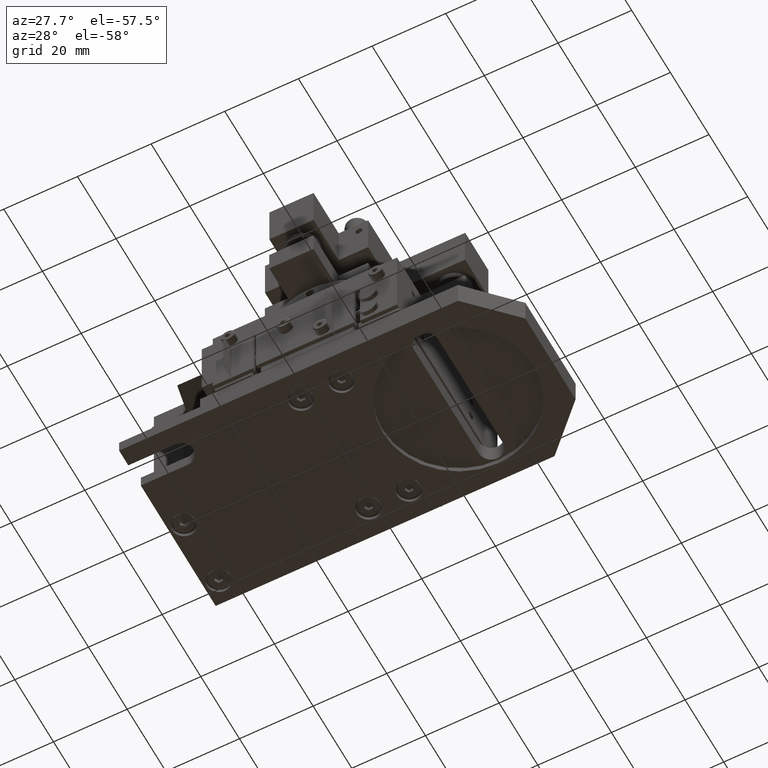
[diagram: clean part render]
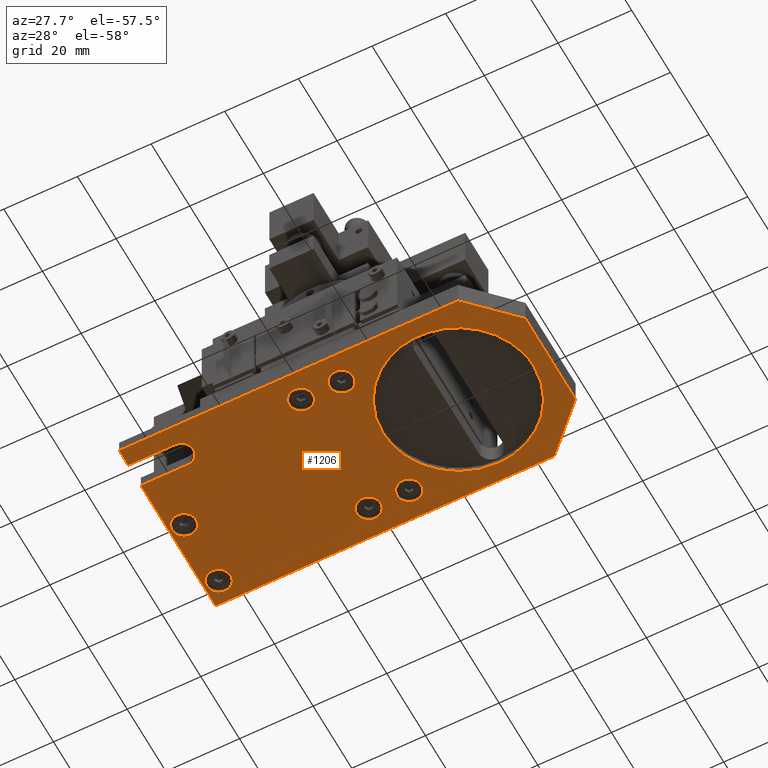
[diagram: same view with one face highlighted and labeled with its STEP entity id]
A machine part, auxiliary view. The second image highlights one B-rep face of the part: STEP entity #1206.
In plain terms, the highlighted face is a freeform B-spline surface patch.
Its self-contained STEP definition (entity closure, byte-faithful):
#809=FACE_BOUND('',#3683,.T.);
#810=FACE_BOUND('',#3684,.T.);
#811=FACE_BOUND('',#3685,.T.);
#812=FACE_BOUND('',#3686,.T.);
#813=FACE_BOUND('',#3687,.T.);
#814=FACE_BOUND('',#3688,.T.);
#815=FACE_BOUND('',#3689,.T.);
#1206=ADVANCED_FACE('',(#2410,#809,#810,#811,#812,#813,#814,#815),#42715,
 .T.);
#2410=FACE_OUTER_BOUND('',#3682,.T.);
#3682=EDGE_LOOP('',(#6405,#6406,#6407,#6408,#6409,#6410,#6411,#6412,#6413,
#6414));
#3683=EDGE_LOOP('',(#6415,#6416,#6417));
#3684=EDGE_LOOP('',(#6418,#6419,#6420));
#3685=EDGE_LOOP('',(#6421,#6422,#6423));
#3686=EDGE_LOOP('',(#6424,#6425,#6426));
#3687=EDGE_LOOP('',(#6427,#6428,#6429));
#3688=EDGE_LOOP('',(#6430,#6431,#6432));
#3689=EDGE_LOOP('',(#6433,#6434,#6435));
#6405=ORIENTED_EDGE('',*,*,#35446,.F.);
#6406=ORIENTED_EDGE('',*,*,#35461,.T.);
#6407=ORIENTED_EDGE('',*,*,#35462,.T.);
#6408=ORIENTED_EDGE('',*,*,#35463,.T.);
#6409=ORIENTED_EDGE('',*,*,#35464,.T.);
#6410=ORIENTED_EDGE('',*,*,#35465,.T.);
#6411=ORIENTED_EDGE('',*,*,#35466,.T.);
#6412=ORIENTED_EDGE('',*,*,#35467,.T.);
#6413=ORIENTED_EDGE('',*,*,#35468,.T.);
#6414=ORIENTED_EDGE('',*,*,#35428,.F.);
#6415=ORIENTED_EDGE('',*,*,#35469,.T.);
#6416=ORIENTED_EDGE('',*,*,#35470,.T.);
#6417=ORIENTED_EDGE('',*,*,#35471,.T.);
#6418=ORIENTED_EDGE('',*,*,#35472,.T.);
#6419=ORIENTED_EDGE('',*,*,#35473,.T.);
#6420=ORIENTED_EDGE('',*,*,#35474,.T.);
#6421=ORIENTED_EDGE('',*,*,#35475,.T.);
#6422=ORIENTED_EDGE('',*,*,#35476,.T.);
#6423=ORIENTED_EDGE('',*,*,#35477,.T.);
#6424=ORIENTED_EDGE('',*,*,#35478,.T.);
#6425=ORIENTED_EDGE('',*,*,#35479,.T.);
#6426=ORIENTED_EDGE('',*,*,#35480,.T.);
#6427=ORIENTED_EDGE('',*,*,#35481,.T.);
#6428=ORIENTED_EDGE('',*,*,#35482,.T.);
#6429=ORIENTED_EDGE('',*,*,#35483,.T.);
#6430=ORIENTED_EDGE('',*,*,#35484,.T.);
#6431=ORIENTED_EDGE('',*,*,#35485,.T.);
#6432=ORIENTED_EDGE('',*,*,#35486,.T.);
#6433=ORIENTED_EDGE('',*,*,#35487,.T.);
#6434=ORIENTED_EDGE('',*,*,#35488,.T.);
#6435=ORIENTED_EDGE('',*,*,#35489,.T.);
#12753=PCURVE('',#42711,#19156);
#12783=PCURVE('',#42712,#19186);
#12808=PCURVE('',#42715,#19211);
#12809=PCURVE('',#42715,#19212);
#12810=PCURVE('',#42715,#19213);
#12811=PCURVE('',#42715,#19214);
#12812=PCURVE('',#42715,#19215);
#12813=PCURVE('',#42715,#19216);
#12814=PCURVE('',#42715,#19217);
#12815=PCURVE('',#42715,#19218);
#12816=PCURVE('',#42715,#19219);
#12817=PCURVE('',#42715,#19220);
#12818=PCURVE('',#42715,#19221);
#12819=PCURVE('',#42715,#19222);
#12820=PCURVE('',#42715,#19223);
#12821=PCURVE('',#42715,#19224);
#12822=PCURVE('',#42715,#19225);
#12823=PCURVE('',#42715,#19226);
#12824=PCURVE('',#42715,#19227);
#12825=PCURVE('',#42715,#19228);
#12826=PCURVE('',#42715,#19229);
#12827=PCURVE('',#42715,#19230);
#12828=PCURVE('',#42715,#19231);
#12829=PCURVE('',#42715,#19232);
#12830=PCURVE('',#42715,#19233);
#12831=PCURVE('',#42715,#19234);
#12832=PCURVE('',#42715,#19235);
#12833=PCURVE('',#42715,#19236);
#12834=PCURVE('',#42715,#19237);
#12835=PCURVE('',#42715,#19238);
#12836=PCURVE('',#42715,#19239);
#12837=PCURVE('',#42715,#19240);
#12838=PCURVE('',#42715,#19241);
#12841=PCURVE('',#42716,#19244);
#12845=PCURVE('',#42717,#19248);
#12849=PCURVE('',#42718,#19252);
#12852=PCURVE('',#42719,#19255);
#12856=PCURVE('',#43250,#19259);
#12860=PCURVE('',#42720,#19263);
#12864=PCURVE('',#43251,#19267);
#12865=PCURVE('',#43251,#19268);
#12870=PCURVE('',#43252,#19273);
#12874=PCURVE('',#43253,#19277);
#12875=PCURVE('',#43253,#19278);
#12880=PCURVE('',#43254,#19283);
#12884=PCURVE('',#43255,#19287);
#12885=PCURVE('',#43255,#19288);
#12890=PCURVE('',#43256,#19293);
#12894=PCURVE('',#43257,#19297);
#12895=PCURVE('',#43257,#19298);
#12900=PCURVE('',#43258,#19303);
#12904=PCURVE('',#43259,#19307);
#12905=PCURVE('',#43259,#19308);
#12910=PCURVE('',#43260,#19313);
#12914=PCURVE('',#43261,#19317);
#12915=PCURVE('',#43261,#19318);
#12920=PCURVE('',#43262,#19323);
#12924=PCURVE('',#43263,#19327);
#12925=PCURVE('',#43263,#19328);
#12932=PCURVE('',#43264,#19335);
#13030=PCURVE('',#42722,#19433);
#13038=PCURVE('',#42723,#19441);
#19156=DEFINITIONAL_REPRESENTATION('',(#25890),#93713);
#19186=DEFINITIONAL_REPRESENTATION('',(#25912),#93713);
#19211=DEFINITIONAL_REPRESENTATION('',(#25947),#93713);
#19212=DEFINITIONAL_REPRESENTATION('',(#25949),#93713);
#19213=DEFINITIONAL_REPRESENTATION('',(#25951),#93713);
#19214=DEFINITIONAL_REPRESENTATION('',(#25953),#93713);
#19215=DEFINITIONAL_REPRESENTATION('',(#25955),#93713);
#19216=DEFINITIONAL_REPRESENTATION('',(#25957),#93713);
#19217=DEFINITIONAL_REPRESENTATION('',(#25959),#93713);
#19218=DEFINITIONAL_REPRESENTATION('',(#38469),#93713);
#19219=DEFINITIONAL_REPRESENTATION('',(#25961),#93713);
#19220=DEFINITIONAL_REPRESENTATION('',(#25962),#93713);
#19221=DEFINITIONAL_REPRESENTATION('',(#38471),#93713);
#19222=DEFINITIONAL_REPRESENTATION('',(#38473),#93713);
#19223=DEFINITIONAL_REPRESENTATION('',(#38475),#93713);
#19224=DEFINITIONAL_REPRESENTATION('',(#38477),#93713);
#19225=DEFINITIONAL_REPRESENTATION('',(#38479),#93713);
#19226=DEFINITIONAL_REPRESENTATION('',(#38481),#93713);
#19227=DEFINITIONAL_REPRESENTATION('',(#38483),#93713);
#19228=DEFINITIONAL_REPRESENTATION('',(#38485),#93713);
#19229=DEFINITIONAL_REPRESENTATION('',(#38487),#93713);
#19230=DEFINITIONAL_REPRESENTATION('',(#38489),#93713);
#19231=DEFINITIONAL_REPRESENTATION('',(#38491),#93713);
#19232=DEFINITIONAL_REPRESENTATION('',(#38493),#93713);
#19233=DEFINITIONAL_REPRESENTATION('',(#38495),#93713);
#19234=DEFINITIONAL_REPRESENTATION('',(#38497),#93713);
#19235=DEFINITIONAL_REPRESENTATION('',(#38499),#93713);
#19236=DEFINITIONAL_REPRESENTATION('',(#38501),#93713);
#19237=DEFINITIONAL_REPRESENTATION('',(#38503),#93713);
#19238=DEFINITIONAL_REPRESENTATION('',(#38505),#93713);
#19239=DEFINITIONAL_REPRESENTATION('',(#38507),#93713);
#19240=DEFINITIONAL_REPRESENTATION('',(#38509),#93713);
#19241=DEFINITIONAL_REPRESENTATION('',(#38511),#93713);
#19244=DEFINITIONAL_REPRESENTATION('',(#25967),#93713);
#19248=DEFINITIONAL_REPRESENTATION('',(#25973),#93713);
#19252=DEFINITIONAL_REPRESENTATION('',(#25979),#93713);
#19255=DEFINITIONAL_REPRESENTATION('',(#25983),#93713);
#19259=DEFINITIONAL_REPRESENTATION('',(#25990),#93713);
#19263=DEFINITIONAL_REPRESENTATION('',(#25994),#93713);
#19267=DEFINITIONAL_REPRESENTATION('',(#26000),#93713);
#19268=DEFINITIONAL_REPRESENTATION('',(#26001),#93713);
#19273=DEFINITIONAL_REPRESENTATION('',(#26007),#93713);
#19277=DEFINITIONAL_REPRESENTATION('',(#26012),#93713);
#19278=DEFINITIONAL_REPRESENTATION('',(#26013),#93713);
#19283=DEFINITIONAL_REPRESENTATION('',(#26019),#93713);
#19287=DEFINITIONAL_REPRESENTATION('',(#26024),#93713);
#19288=DEFINITIONAL_REPRESENTATION('',(#26025),#93713);
#19293=DEFINITIONAL_REPRESENTATION('',(#26031),#93713);
#19297=DEFINITIONAL_REPRESENTATION('',(#26036),#93713);
#19298=DEFINITIONAL_REPRESENTATION('',(#26037),#93713);
#19303=DEFINITIONAL_REPRESENTATION('',(#26043),#93713);
#19307=DEFINITIONAL_REPRESENTATION('',(#26048),#93713);
#19308=DEFINITIONAL_REPRESENTATION('',(#26049),#93713);
#19313=DEFINITIONAL_REPRESENTATION('',(#26055),#93713);
#19317=DEFINITIONAL_REPRESENTATION('',(#26060),#93713);
#19318=DEFINITIONAL_REPRESENTATION('',(#26061),#93713);
#19323=DEFINITIONAL_REPRESENTATION('',(#26067),#93713);
#19327=DEFINITIONAL_REPRESENTATION('',(#26072),#93713);
#19328=DEFINITIONAL_REPRESENTATION('',(#26073),#93713);
#19335=DEFINITIONAL_REPRESENTATION('',(#26081),#93713);
#19433=DEFINITIONAL_REPRESENTATION('',(#26194),#93713);
#19441=DEFINITIONAL_REPRESENTATION('',(#26204),#93713);
#25889=B_SPLINE_CURVE_WITH_KNOTS('',1,(#59040,#59041),.UNSPECIFIED.,.F.,
 .F.,(2,2),(0.,38.75),.UNSPECIFIED.);
#25890=B_SPLINE_CURVE_WITH_KNOTS('',1,(#59042,#59043),.UNSPECIFIED.,.F.,
 .F.,(2,2),(0.,38.75),.UNSPECIFIED.);
#25911=B_SPLINE_CURVE_WITH_KNOTS('',1,(#59190,#59191),.UNSPECIFIED.,.F.,
 .F.,(2,2),(0.,91.9999999999998),.UNSPECIFIED.);
#25912=B_SPLINE_CURVE_WITH_KNOTS('',1,(#59192,#59193),.UNSPECIFIED.,.F.,
 .F.,(2,2),(0.,91.9999999999998),.UNSPECIFIED.);
#25947=B_SPLINE_CURVE_WITH_KNOTS('',1,(#59344,#59345),.UNSPECIFIED.,.F.,
 .F.,(2,2),(0.,91.9999999999998),.UNSPECIFIED.);
#25948=B_SPLINE_CURVE_WITH_KNOTS('',1,(#59346,#59347),.UNSPECIFIED.,.F.,
 .F.,(2,2),(-16.9705627484773,0.),.UNSPECIFIED.);
#25949=B_SPLINE_CURVE_WITH_KNOTS('',1,(#59348,#59349),.UNSPECIFIED.,.F.,
 .F.,(2,2),(-16.9705627484773,0.),.UNSPECIFIED.);
#25950=B_SPLINE_CURVE_WITH_KNOTS('',1,(#59350,#59351),.UNSPECIFIED.,.F.,
 .F.,(2,2),(-26.,0.),.UNSPECIFIED.);
#25951=B_SPLINE_CURVE_WITH_KNOTS('',1,(#59352,#59353),.UNSPECIFIED.,.F.,
 .F.,(2,2),(-26.,0.),.UNSPECIFIED.);
#25952=B_SPLINE_CURVE_WITH_KNOTS('',1,(#59354,#59355),.UNSPECIFIED.,.F.,
 .F.,(2,2),(-16.9705627484771,0.),.UNSPECIFIED.);
#25953=B_SPLINE_CURVE_WITH_KNOTS('',1,(#59356,#59357),.UNSPECIFIED.,.F.,
 .F.,(2,2),(-16.9705627484771,0.),.UNSPECIFIED.);
#25954=B_SPLINE_CURVE_WITH_KNOTS('',1,(#59358,#59359),.UNSPECIFIED.,.F.,
 .F.,(2,2),(-91.9999999999998,0.),.UNSPECIFIED.);
#25955=B_SPLINE_CURVE_WITH_KNOTS('',1,(#59360,#59361),.UNSPECIFIED.,.F.,
 .F.,(2,2),(-91.9999999999998,0.),.UNSPECIFIED.);
#25956=B_SPLINE_CURVE_WITH_KNOTS('',1,(#59362,#59363),.UNSPECIFIED.,.F.,
 .F.,(2,2),(-4.74999999999993,0.),.UNSPECIFIED.);
#25957=B_SPLINE_CURVE_WITH_KNOTS('',1,(#59364,#59365),.UNSPECIFIED.,.F.,
 .F.,(2,2),(-4.74999999999993,0.),.UNSPECIFIED.);
#25958=B_SPLINE_CURVE_WITH_KNOTS('',1,(#59366,#59367),.UNSPECIFIED.,.F.,
 .F.,(2,2),(-12.7500000000005,0.),.UNSPECIFIED.);
#25959=B_SPLINE_CURVE_WITH_KNOTS('',1,(#59368,#59369),.UNSPECIFIED.,.F.,
 .F.,(2,2),(-12.7500000000005,0.),.UNSPECIFIED.);
#25960=B_SPLINE_CURVE_WITH_KNOTS('',1,(#59380,#59381),.UNSPECIFIED.,.F.,
 .F.,(2,2),(-12.7500000000005,0.),.UNSPECIFIED.);
#25961=B_SPLINE_CURVE_WITH_KNOTS('',1,(#59382,#59383),.UNSPECIFIED.,.F.,
 .F.,(2,2),(-12.7500000000005,0.),.UNSPECIFIED.);
#25962=B_SPLINE_CURVE_WITH_KNOTS('',1,(#59384,#59385),.UNSPECIFIED.,.F.,
 .F.,(2,2),(0.,38.75),.UNSPECIFIED.);
#25967=B_SPLINE_CURVE_WITH_KNOTS('',1,(#59576,#59577),.UNSPECIFIED.,.F.,
 .F.,(2,2),(-16.9705627484773,0.),.UNSPECIFIED.);
#25973=B_SPLINE_CURVE_WITH_KNOTS('',1,(#59588,#59589),.UNSPECIFIED.,.F.,
 .F.,(2,2),(-26.,0.),.UNSPECIFIED.);
#25979=B_SPLINE_CURVE_WITH_KNOTS('',1,(#59600,#59601),.UNSPECIFIED.,.F.,
 .F.,(2,2),(-16.9705627484771,0.),.UNSPECIFIED.);
#25983=B_SPLINE_CURVE_WITH_KNOTS('',1,(#59608,#59609),.UNSPECIFIED.,.F.,
 .F.,(2,2),(-12.7500000000005,0.),.UNSPECIFIED.);
#25990=B_SPLINE_CURVE_WITH_KNOTS('',1,(#59622,#59623),.UNSPECIFIED.,.F.,
 .F.,(2,2),(-10.2101760556782,0.),.UNSPECIFIED.);
#25994=B_SPLINE_CURVE_WITH_KNOTS('',1,(#59635,#59636),.UNSPECIFIED.,.F.,
 .F.,(2,2),(-12.7500000000005,0.),.UNSPECIFIED.);
#26000=B_SPLINE_CURVE_WITH_KNOTS('',1,(#59647,#59648),.UNSPECIFIED.,.F.,
 .F.,(2,2),(-10.2101761241668,-5.10725853755396),.UNSPECIFIED.);
#26001=B_SPLINE_CURVE_WITH_KNOTS('',1,(#59649,#59650),.UNSPECIFIED.,.F.,
 .F.,(2,2),(-20.4203522483337,-10.2101761241668),.UNSPECIFIED.);
#26007=B_SPLINE_CURVE_WITH_KNOTS('',1,(#59669,#59670),.UNSPECIFIED.,.F.,
 .F.,(2,2),(-5.10725853755396,0.),.UNSPECIFIED.);
#26012=B_SPLINE_CURVE_WITH_KNOTS('',1,(#59684,#59685),.UNSPECIFIED.,.F.,
 .F.,(2,2),(-10.2101761241668,-5.10725853755396),.UNSPECIFIED.);
#26013=B_SPLINE_CURVE_WITH_KNOTS('',1,(#59686,#59687),.UNSPECIFIED.,.F.,
 .F.,(2,2),(-20.4203522483337,-10.2101761241668),.UNSPECIFIED.);
#26019=B_SPLINE_CURVE_WITH_KNOTS('',1,(#59706,#59707),.UNSPECIFIED.,.F.,
 .F.,(2,2),(-5.10725853755396,0.),.UNSPECIFIED.);
#26024=B_SPLINE_CURVE_WITH_KNOTS('',1,(#59721,#59722),.UNSPECIFIED.,.F.,
 .F.,(2,2),(-10.2101761241668,-5.10725853755396),.UNSPECIFIED.);
#26025=B_SPLINE_CURVE_WITH_KNOTS('',1,(#59723,#59724),.UNSPECIFIED.,.F.,
 .F.,(2,2),(-20.4203522483337,-10.2101761241668),.UNSPECIFIED.);
#26031=B_SPLINE_CURVE_WITH_KNOTS('',1,(#59743,#59744),.UNSPECIFIED.,.F.,
 .F.,(2,2),(-5.10725853755396,0.),.UNSPECIFIED.);
#26036=B_SPLINE_CURVE_WITH_KNOTS('',1,(#59758,#59759),.UNSPECIFIED.,.F.,
 .F.,(2,2),(-10.2101761241668,-5.10725853755396),.UNSPECIFIED.);
#26037=B_SPLINE_CURVE_WITH_KNOTS('',1,(#59760,#59761),.UNSPECIFIED.,.F.,
 .F.,(2,2),(-20.4203522483337,-10.2101761241668),.UNSPECIFIED.);
#26043=B_SPLINE_CURVE_WITH_KNOTS('',1,(#59780,#59781),.UNSPECIFIED.,.F.,
 .F.,(2,2),(-5.10725853755396,0.),.UNSPECIFIED.);
#26048=B_SPLINE_CURVE_WITH_KNOTS('',1,(#59795,#59796),.UNSPECIFIED.,.F.,
 .F.,(2,2),(-10.2101761241668,-5.10725853755376),.UNSPECIFIED.);
#26049=B_SPLINE_CURVE_WITH_KNOTS('',1,(#59797,#59798),.UNSPECIFIED.,.F.,
 .F.,(2,2),(-20.4203522483337,-10.2101761241668),.UNSPECIFIED.);
#26055=B_SPLINE_CURVE_WITH_KNOTS('',1,(#59817,#59818),.UNSPECIFIED.,.F.,
 .F.,(2,2),(-5.10725853755376,0.),.UNSPECIFIED.);
#26060=B_SPLINE_CURVE_WITH_KNOTS('',1,(#59832,#59833),.UNSPECIFIED.,.F.,
 .F.,(2,2),(-10.2101761241669,-5.10725853755376),.UNSPECIFIED.);
#26061=B_SPLINE_CURVE_WITH_KNOTS('',1,(#59834,#59835),.UNSPECIFIED.,.F.,
 .F.,(2,2),(-20.4203522483337,-10.2101761241669),.UNSPECIFIED.);
#26067=B_SPLINE_CURVE_WITH_KNOTS('',1,(#59854,#59855),.UNSPECIFIED.,.F.,
 .F.,(2,2),(-5.10725853755376,0.),.UNSPECIFIED.);
#26072=B_SPLINE_CURVE_WITH_KNOTS('',1,(#59869,#59870),.UNSPECIFIED.,.F.,
 .F.,(2,2),(-64.4026493985908,-32.215015390725),.UNSPECIFIED.);
#26073=B_SPLINE_CURVE_WITH_KNOTS('',1,(#59871,#59872),.UNSPECIFIED.,.F.,
 .F.,(2,2),(-128.805298797182,-64.4026493985908),.UNSPECIFIED.);
#26081=B_SPLINE_CURVE_WITH_KNOTS('',1,(#59887,#59888),.UNSPECIFIED.,.F.,
 .F.,(2,2),(-32.215015390725,0.),.UNSPECIFIED.);
#26194=B_SPLINE_CURVE_WITH_KNOTS('',1,(#60204,#60205),.UNSPECIFIED.,.F.,
 .F.,(2,2),(-91.9999999999998,0.),.UNSPECIFIED.);
#26204=B_SPLINE_CURVE_WITH_KNOTS('',1,(#60224,#60225),.UNSPECIFIED.,.F.,
 .F.,(2,2),(-4.74999999999993,0.),.UNSPECIFIED.);
#32088=SURFACE_CURVE('',#25889,(#12753,#12817),.PCURVE_S1.);
#32106=SURFACE_CURVE('',#25911,(#12783,#12808),.PCURVE_S1.);
#32121=SURFACE_CURVE('',#25948,(#12809,#12841),.PCURVE_S1.);
#32122=SURFACE_CURVE('',#25950,(#12810,#12845),.PCURVE_S1.);
#32123=SURFACE_CURVE('',#25952,(#12811,#12849),.PCURVE_S1.);
#32124=SURFACE_CURVE('',#25954,(#12812,#13030),.PCURVE_S1.);
#32125=SURFACE_CURVE('',#25956,(#12813,#13038),.PCURVE_S1.);
#32126=SURFACE_CURVE('',#25958,(#12814,#12852),.PCURVE_S1.);
#32127=SURFACE_CURVE('',#38468,(#12815,#12856),.PCURVE_S1.);
#32128=SURFACE_CURVE('',#25960,(#12816,#12860),.PCURVE_S1.);
#32129=SURFACE_CURVE('',#38470,(#12818,#12925),.PCURVE_S1.);
#32130=SURFACE_CURVE('',#38472,(#12819,#12924),.PCURVE_S1.);
#32131=SURFACE_CURVE('',#38474,(#12820,#12932),.PCURVE_S1.);
#32132=SURFACE_CURVE('',#38476,(#12821,#12915),.PCURVE_S1.);
#32133=SURFACE_CURVE('',#38478,(#12822,#12914),.PCURVE_S1.);
#32134=SURFACE_CURVE('',#38480,(#12823,#12920),.PCURVE_S1.);
#32135=SURFACE_CURVE('',#38482,(#12824,#12905),.PCURVE_S1.);
#32136=SURFACE_CURVE('',#38484,(#12825,#12904),.PCURVE_S1.);
#32137=SURFACE_CURVE('',#38486,(#12826,#12910),.PCURVE_S1.);
#32138=SURFACE_CURVE('',#38488,(#12827,#12895),.PCURVE_S1.);
#32139=SURFACE_CURVE('',#38490,(#12828,#12894),.PCURVE_S1.);
#32140=SURFACE_CURVE('',#38492,(#12829,#12900),.PCURVE_S1.);
#32141=SURFACE_CURVE('',#38494,(#12830,#12885),.PCURVE_S1.);
#32142=SURFACE_CURVE('',#38496,(#12831,#12884),.PCURVE_S1.);
#32143=SURFACE_CURVE('',#38498,(#12832,#12890),.PCURVE_S1.);
#32144=SURFACE_CURVE('',#38500,(#12833,#12875),.PCURVE_S1.);
#32145=SURFACE_CURVE('',#38502,(#12834,#12874),.PCURVE_S1.);
#32146=SURFACE_CURVE('',#38504,(#12835,#12880),.PCURVE_S1.);
#32147=SURFACE_CURVE('',#38506,(#12836,#12865),.PCURVE_S1.);
#32148=SURFACE_CURVE('',#38508,(#12837,#12864),.PCURVE_S1.);
#32149=SURFACE_CURVE('',#38510,(#12838,#12870),.PCURVE_S1.);
#35428=EDGE_CURVE('',#40983,#40984,#32088,.T.);
#35446=EDGE_CURVE('',#40997,#40983,#32106,.T.);
#35461=EDGE_CURVE('',#40997,#41003,#32121,.T.);
#35462=EDGE_CURVE('',#41003,#41004,#32122,.T.);
#35463=EDGE_CURVE('',#41004,#41005,#32123,.T.);
#35464=EDGE_CURVE('',#41005,#41006,#32124,.T.);
#35465=EDGE_CURVE('',#41006,#41007,#32125,.T.);
#35466=EDGE_CURVE('',#41007,#41008,#32126,.T.);
#35467=EDGE_CURVE('',#41008,#41009,#32127,.T.);
#35468=EDGE_CURVE('',#41009,#40984,#32128,.T.);
#35469=EDGE_CURVE('',#41011,#41010,#32129,.T.);
#35470=EDGE_CURVE('',#41010,#41048,#32130,.T.);
#35471=EDGE_CURVE('',#41048,#41011,#32131,.T.);
#35472=EDGE_CURVE('',#41013,#41012,#32132,.T.);
#35473=EDGE_CURVE('',#41012,#41047,#32133,.T.);
#35474=EDGE_CURVE('',#41047,#41013,#32134,.T.);
#35475=EDGE_CURVE('',#41015,#41014,#32135,.T.);
#35476=EDGE_CURVE('',#41014,#41044,#32136,.T.);
#35477=EDGE_CURVE('',#41044,#41015,#32137,.T.);
#35478=EDGE_CURVE('',#41017,#41016,#32138,.T.);
#35479=EDGE_CURVE('',#41016,#41041,#32139,.T.);
#35480=EDGE_CURVE('',#41041,#41017,#32140,.T.);
#35481=EDGE_CURVE('',#41019,#41018,#32141,.T.);
#35482=EDGE_CURVE('',#41018,#41038,#32142,.T.);
#35483=EDGE_CURVE('',#41038,#41019,#32143,.T.);
#35484=EDGE_CURVE('',#41021,#41020,#32144,.T.);
#35485=EDGE_CURVE('',#41020,#41035,#32145,.T.);
#35486=EDGE_CURVE('',#41035,#41021,#32146,.T.);
#35487=EDGE_CURVE('',#41023,#41022,#32147,.T.);
#35488=EDGE_CURVE('',#41022,#41032,#32148,.T.);
#35489=EDGE_CURVE('',#41032,#41023,#32149,.T.);
#38468=(
BOUNDED_CURVE()
B_SPLINE_CURVE(2,(#59370,#59371,#59372,#59373,#59374),.UNSPECIFIED.,.F.,
 .F.)
B_SPLINE_CURVE_WITH_KNOTS((3,2,3),(-10.2101760556782,-5.1050880278391,0.),
 .UNSPECIFIED.)
CURVE()
GEOMETRIC_REPRESENTATION_ITEM()
RATIONAL_B_SPLINE_CURVE((1.,0.7071067824283,1.,0.7071067824283,1.))
REPRESENTATION_ITEM('')
);
#38469=(
BOUNDED_CURVE()
B_SPLINE_CURVE(2,(#59375,#59376,#59377,#59378,#59379),.UNSPECIFIED.,.F.,
 .F.)
B_SPLINE_CURVE_WITH_KNOTS((3,2,3),(-10.2101760556782,-5.1050880278391,0.),
 .UNSPECIFIED.)
CURVE()
GEOMETRIC_REPRESENTATION_ITEM()
RATIONAL_B_SPLINE_CURVE((1.,0.707106784911838,1.,0.707106784911838,1.))
REPRESENTATION_ITEM('')
);
#38470=(
BOUNDED_CURVE()
B_SPLINE_CURVE(2,(#59386,#59387,#59388,#59389,#59390),.UNSPECIFIED.,.F.,
 .F.)
B_SPLINE_CURVE_WITH_KNOTS((3,2,3),(-128.805298797182,-96.6039740978861,
-64.4026493985908),.UNSPECIFIED.)
CURVE()
GEOMETRIC_REPRESENTATION_ITEM()
RATIONAL_B_SPLINE_CURVE((1.,0.707106781186547,1.,0.707106781186547,1.))
REPRESENTATION_ITEM('')
);
#38471=(
BOUNDED_CURVE()
B_SPLINE_CURVE(2,(#59391,#59392,#59393,#59394,#59395),.UNSPECIFIED.,.F.,
 .F.)
B_SPLINE_CURVE_WITH_KNOTS((3,2,3),(-128.805298797182,-96.6039740978861,
-64.4026493985908),.UNSPECIFIED.)
CURVE()
GEOMETRIC_REPRESENTATION_ITEM()
RATIONAL_B_SPLINE_CURVE((1.,0.707106781186548,1.,0.707106781186548,1.))
REPRESENTATION_ITEM('')
);
#38472=(
BOUNDED_CURVE()
B_SPLINE_CURVE(2,(#59396,#59397,#59398),.UNSPECIFIED.,.F.,.F.)
B_SPLINE_CURVE_WITH_KNOTS((3,3),(-64.4026493985908,-32.215015390725),
 .UNSPECIFIED.)
CURVE()
GEOMETRIC_REPRESENTATION_ITEM()
RATIONAL_B_SPLINE_CURVE((1.,0.707342858363849,1.))
REPRESENTATION_ITEM('')
);
#38473=(
BOUNDED_CURVE()
B_SPLINE_CURVE(2,(#59399,#59400,#59401),.UNSPECIFIED.,.F.,.F.)
B_SPLINE_CURVE_WITH_KNOTS((3,3),(-64.4026493985908,-32.215015390725),
 .UNSPECIFIED.)
CURVE()
GEOMETRIC_REPRESENTATION_ITEM()
RATIONAL_B_SPLINE_CURVE((1.,0.707342858363849,1.))
REPRESENTATION_ITEM('')
);
#38474=(
BOUNDED_CURVE()
B_SPLINE_CURVE(2,(#59402,#59403,#59404,#59405,#59406),.UNSPECIFIED.,.F.,
 .F.)
B_SPLINE_CURVE_WITH_KNOTS((3,2,3),(-32.215015390725,-16.1075076953625,0.),
 .UNSPECIFIED.)
CURVE()
GEOMETRIC_REPRESENTATION_ITEM()
RATIONAL_B_SPLINE_CURVE((1.,0.923815626942237,1.,0.923815626942237,1.))
REPRESENTATION_ITEM('')
);
#38475=(
BOUNDED_CURVE()
B_SPLINE_CURVE(2,(#59407,#59408,#59409,#59410,#59411),.UNSPECIFIED.,.F.,
 .F.)
B_SPLINE_CURVE_WITH_KNOTS((3,2,3),(-32.215015390725,-32.1998116727058,0.),
 .UNSPECIFIED.)
CURVE()
GEOMETRIC_REPRESENTATION_ITEM()
RATIONAL_B_SPLINE_CURVE((1.,0.99999994424895,1.,0.707106781186548,1.))
REPRESENTATION_ITEM('')
);
#38476=(
BOUNDED_CURVE()
B_SPLINE_CURVE(2,(#59412,#59413,#59414,#59415,#59416),.UNSPECIFIED.,.F.,
 .F.)
B_SPLINE_CURVE_WITH_KNOTS((3,2,3),(-20.4203522483337,-15.3152641862503,
-10.2101761241669),.UNSPECIFIED.)
CURVE()
GEOMETRIC_REPRESENTATION_ITEM()
RATIONAL_B_SPLINE_CURVE((1.,0.707106781186549,1.,0.707106781186549,1.))
REPRESENTATION_ITEM('')
);
#38477=(
BOUNDED_CURVE()
B_SPLINE_CURVE(2,(#59417,#59418,#59419,#59420,#59421),.UNSPECIFIED.,.F.,
 .F.)
B_SPLINE_CURVE_WITH_KNOTS((3,2,3),(-20.4203522483337,-15.3152641862503,
-10.2101761241669),.UNSPECIFIED.)
CURVE()
GEOMETRIC_REPRESENTATION_ITEM()
RATIONAL_B_SPLINE_CURVE((1.,0.707106781186548,1.,0.707106781186548,1.))
REPRESENTATION_ITEM('')
);
#38478=(
BOUNDED_CURVE()
B_SPLINE_CURVE(2,(#59422,#59423,#59424),.UNSPECIFIED.,.F.,.F.)
B_SPLINE_CURVE_WITH_KNOTS((3,3),(-10.2101761241669,-5.10725853755376),
 .UNSPECIFIED.)
CURVE()
GEOMETRIC_REPRESENTATION_ITEM()
RATIONAL_B_SPLINE_CURVE((1.,0.707342858363821,1.))
REPRESENTATION_ITEM('')
);
#38479=(
BOUNDED_CURVE()
B_SPLINE_CURVE(2,(#59425,#59426,#59427),.UNSPECIFIED.,.F.,.F.)
B_SPLINE_CURVE_WITH_KNOTS((3,3),(-10.2101761241669,-5.10725853755376),
 .UNSPECIFIED.)
CURVE()
GEOMETRIC_REPRESENTATION_ITEM()
RATIONAL_B_SPLINE_CURVE((1.,0.707342858363832,1.))
REPRESENTATION_ITEM('')
);
#38480=(
BOUNDED_CURVE()
B_SPLINE_CURVE(2,(#59428,#59429,#59430,#59431,#59432),.UNSPECIFIED.,.F.,
 .F.)
B_SPLINE_CURVE_WITH_KNOTS((3,2,3),(-5.10725853755376,-2.55362926877688,
0.),.UNSPECIFIED.)
CURVE()
GEOMETRIC_REPRESENTATION_ITEM()
RATIONAL_B_SPLINE_CURVE((1.,0.923815626942242,1.,0.923815626942242,1.))
REPRESENTATION_ITEM('')
);
#38481=(
BOUNDED_CURVE()
B_SPLINE_CURVE(2,(#59433,#59434,#59435,#59436,#59437),.UNSPECIFIED.,.F.,
 .F.)
B_SPLINE_CURVE_WITH_KNOTS((3,2,3),(-5.10725853755376,-5.10484819201431,
0.),.UNSPECIFIED.)
CURVE()
GEOMETRIC_REPRESENTATION_ITEM()
RATIONAL_B_SPLINE_CURVE((1.,0.99999994424895,1.,0.707106781186548,1.))
REPRESENTATION_ITEM('')
);
#38482=(
BOUNDED_CURVE()
B_SPLINE_CURVE(2,(#59438,#59439,#59440,#59441,#59442),.UNSPECIFIED.,.F.,
 .F.)
B_SPLINE_CURVE_WITH_KNOTS((3,2,3),(-20.4203522483337,-15.3152641862502,
-10.2101761241668),.UNSPECIFIED.)
CURVE()
GEOMETRIC_REPRESENTATION_ITEM()
RATIONAL_B_SPLINE_CURVE((1.,0.707106781186547,1.,0.707106781186547,1.))
REPRESENTATION_ITEM('')
);
#38483=(
BOUNDED_CURVE()
B_SPLINE_CURVE(2,(#59443,#59444,#59445,#59446,#59447),.UNSPECIFIED.,.F.,
 .F.)
B_SPLINE_CURVE_WITH_KNOTS((3,2,3),(-20.4203522483337,-15.3152641862502,
-10.2101761241668),.UNSPECIFIED.)
CURVE()
GEOMETRIC_REPRESENTATION_ITEM()
RATIONAL_B_SPLINE_CURVE((1.,0.707106781186548,1.,0.707106781186548,1.))
REPRESENTATION_ITEM('')
);
#38484=(
BOUNDED_CURVE()
B_SPLINE_CURVE(2,(#59448,#59449,#59450),.UNSPECIFIED.,.F.,.F.)
B_SPLINE_CURVE_WITH_KNOTS((3,3),(-10.2101761241668,-5.10725853755376),
 .UNSPECIFIED.)
CURVE()
GEOMETRIC_REPRESENTATION_ITEM()
RATIONAL_B_SPLINE_CURVE((1.,0.707342858363829,1.))
REPRESENTATION_ITEM('')
);
#38485=(
BOUNDED_CURVE()
B_SPLINE_CURVE(2,(#59451,#59452,#59453),.UNSPECIFIED.,.F.,.F.)
B_SPLINE_CURVE_WITH_KNOTS((3,3),(-10.2101761241668,-5.10725853755376),
 .UNSPECIFIED.)
CURVE()
GEOMETRIC_REPRESENTATION_ITEM()
RATIONAL_B_SPLINE_CURVE((1.,0.707342858363819,1.))
REPRESENTATION_ITEM('')
);
#38486=(
BOUNDED_CURVE()
B_SPLINE_CURVE(2,(#59454,#59455,#59456,#59457,#59458),.UNSPECIFIED.,.F.,
 .F.)
B_SPLINE_CURVE_WITH_KNOTS((3,2,3),(-5.10725853755376,-2.55362926877688,
0.),.UNSPECIFIED.)
CURVE()
GEOMETRIC_REPRESENTATION_ITEM()
RATIONAL_B_SPLINE_CURVE((1.,0.923815626942242,1.,0.923815626942242,1.))
REPRESENTATION_ITEM('')
);
#38487=(
BOUNDED_CURVE()
B_SPLINE_CURVE(2,(#59459,#59460,#59461,#59462,#59463),.UNSPECIFIED.,.F.,
 .F.)
B_SPLINE_CURVE_WITH_KNOTS((3,2,3),(-5.10725853755376,-5.10484819201444,
0.),.UNSPECIFIED.)
CURVE()
GEOMETRIC_REPRESENTATION_ITEM()
RATIONAL_B_SPLINE_CURVE((1.,0.99999994424895,1.,0.707106781186548,1.))
REPRESENTATION_ITEM('')
);
#38488=(
BOUNDED_CURVE()
B_SPLINE_CURVE(2,(#59464,#59465,#59466,#59467,#59468),.UNSPECIFIED.,.F.,
 .F.)
B_SPLINE_CURVE_WITH_KNOTS((3,2,3),(-20.4203522483337,-15.3152641862502,
-10.2101761241668),.UNSPECIFIED.)
CURVE()
GEOMETRIC_REPRESENTATION_ITEM()
RATIONAL_B_SPLINE_CURVE((1.,0.707106781186553,1.,0.707106781186553,1.))
REPRESENTATION_ITEM('')
);
#38489=(
BOUNDED_CURVE()
B_SPLINE_CURVE(2,(#59469,#59470,#59471,#59472,#59473),.UNSPECIFIED.,.F.,
 .F.)
B_SPLINE_CURVE_WITH_KNOTS((3,2,3),(-20.4203522483337,-15.3152641862502,
-10.2101761241668),.UNSPECIFIED.)
CURVE()
GEOMETRIC_REPRESENTATION_ITEM()
RATIONAL_B_SPLINE_CURVE((1.,0.707106781186548,1.,0.707106781186548,1.))
REPRESENTATION_ITEM('')
);
#38490=(
BOUNDED_CURVE()
B_SPLINE_CURVE(2,(#59474,#59475,#59476),.UNSPECIFIED.,.F.,.F.)
B_SPLINE_CURVE_WITH_KNOTS((3,3),(-10.2101761241668,-5.10725853755396),
 .UNSPECIFIED.)
CURVE()
GEOMETRIC_REPRESENTATION_ITEM()
RATIONAL_B_SPLINE_CURVE((1.,0.707342858363846,1.))
REPRESENTATION_ITEM('')
);
#38491=(
BOUNDED_CURVE()
B_SPLINE_CURVE(2,(#59477,#59478,#59479),.UNSPECIFIED.,.F.,.F.)
B_SPLINE_CURVE_WITH_KNOTS((3,3),(-10.2101761241668,-5.10725853755396),
 .UNSPECIFIED.)
CURVE()
GEOMETRIC_REPRESENTATION_ITEM()
RATIONAL_B_SPLINE_CURVE((1.,0.707342858363845,1.))
REPRESENTATION_ITEM('')
);
#38492=(
BOUNDED_CURVE()
B_SPLINE_CURVE(2,(#59480,#59481,#59482,#59483,#59484),.UNSPECIFIED.,.F.,
 .F.)
B_SPLINE_CURVE_WITH_KNOTS((3,2,3),(-5.10725853755396,-2.55362926877698,
0.),.UNSPECIFIED.)
CURVE()
GEOMETRIC_REPRESENTATION_ITEM()
RATIONAL_B_SPLINE_CURVE((1.,0.923815626942236,1.,0.923815626942236,1.))
REPRESENTATION_ITEM('')
);
#38493=(
BOUNDED_CURVE()
B_SPLINE_CURVE(2,(#59485,#59486,#59487,#59488,#59489),.UNSPECIFIED.,.F.,
 .F.)
B_SPLINE_CURVE_WITH_KNOTS((3,2,3),(-5.10725853755396,-5.10484819201437,
0.),.UNSPECIFIED.)
CURVE()
GEOMETRIC_REPRESENTATION_ITEM()
RATIONAL_B_SPLINE_CURVE((1.,0.99999994424895,1.,0.707106781186548,1.))
REPRESENTATION_ITEM('')
);
#38494=(
BOUNDED_CURVE()
B_SPLINE_CURVE(2,(#59490,#59491,#59492,#59493,#59494),.UNSPECIFIED.,.F.,
 .F.)
B_SPLINE_CURVE_WITH_KNOTS((3,2,3),(-20.4203522483337,-15.3152641862502,
-10.2101761241668),.UNSPECIFIED.)
CURVE()
GEOMETRIC_REPRESENTATION_ITEM()
RATIONAL_B_SPLINE_CURVE((1.,0.707106781186543,1.,0.707106781186543,1.))
REPRESENTATION_ITEM('')
);
#38495=(
BOUNDED_CURVE()
B_SPLINE_CURVE(2,(#59495,#59496,#59497,#59498,#59499),.UNSPECIFIED.,.F.,
 .F.)
B_SPLINE_CURVE_WITH_KNOTS((3,2,3),(-20.4203522483337,-15.3152641862502,
-10.2101761241668),.UNSPECIFIED.)
CURVE()
GEOMETRIC_REPRESENTATION_ITEM()
RATIONAL_B_SPLINE_CURVE((1.,0.707106781186548,1.,0.707106781186548,1.))
REPRESENTATION_ITEM('')
);
#38496=(
BOUNDED_CURVE()
B_SPLINE_CURVE(2,(#59500,#59501,#59502),.UNSPECIFIED.,.F.,.F.)
B_SPLINE_CURVE_WITH_KNOTS((3,3),(-10.2101761241668,-5.10725853755396),
 .UNSPECIFIED.)
CURVE()
GEOMETRIC_REPRESENTATION_ITEM()
RATIONAL_B_SPLINE_CURVE((1.,0.707342858363843,1.))
REPRESENTATION_ITEM('')
);
#38497=(
BOUNDED_CURVE()
B_SPLINE_CURVE(2,(#59503,#59504,#59505),.UNSPECIFIED.,.F.,.F.)
B_SPLINE_CURVE_WITH_KNOTS((3,3),(-10.2101761241668,-5.10725853755396),
 .UNSPECIFIED.)
CURVE()
GEOMETRIC_REPRESENTATION_ITEM()
RATIONAL_B_SPLINE_CURVE((1.,0.707342858363845,1.))
REPRESENTATION_ITEM('')
);
#38498=(
BOUNDED_CURVE()
B_SPLINE_CURVE(2,(#59506,#59507,#59508,#59509,#59510),.UNSPECIFIED.,.F.,
 .F.)
B_SPLINE_CURVE_WITH_KNOTS((3,2,3),(-5.10725853755396,-2.55362926877698,
0.),.UNSPECIFIED.)
CURVE()
GEOMETRIC_REPRESENTATION_ITEM()
RATIONAL_B_SPLINE_CURVE((1.,0.923815626942236,1.,0.923815626942236,1.))
REPRESENTATION_ITEM('')
);
#38499=(
BOUNDED_CURVE()
B_SPLINE_CURVE(2,(#59511,#59512,#59513,#59514,#59515),.UNSPECIFIED.,.F.,
 .F.)
B_SPLINE_CURVE_WITH_KNOTS((3,2,3),(-5.10725853755396,-5.10484819201438,
0.),.UNSPECIFIED.)
CURVE()
GEOMETRIC_REPRESENTATION_ITEM()
RATIONAL_B_SPLINE_CURVE((1.,0.99999994424895,1.,0.707106781186548,1.))
REPRESENTATION_ITEM('')
);
#38500=(
BOUNDED_CURVE()
B_SPLINE_CURVE(2,(#59516,#59517,#59518,#59519,#59520),.UNSPECIFIED.,.F.,
 .F.)
B_SPLINE_CURVE_WITH_KNOTS((3,2,3),(-20.4203522483337,-15.3152641862502,
-10.2101761241668),.UNSPECIFIED.)
CURVE()
GEOMETRIC_REPRESENTATION_ITEM()
RATIONAL_B_SPLINE_CURVE((1.,0.707106781186551,1.,0.707106781186551,1.))
REPRESENTATION_ITEM('')
);
#38501=(
BOUNDED_CURVE()
B_SPLINE_CURVE(2,(#59521,#59522,#59523,#59524,#59525),.UNSPECIFIED.,.F.,
 .F.)
B_SPLINE_CURVE_WITH_KNOTS((3,2,3),(-20.4203522483337,-15.3152641862502,
-10.2101761241668),.UNSPECIFIED.)
CURVE()
GEOMETRIC_REPRESENTATION_ITEM()
RATIONAL_B_SPLINE_CURVE((1.,0.707106781186548,1.,0.707106781186548,1.))
REPRESENTATION_ITEM('')
);
#38502=(
BOUNDED_CURVE()
B_SPLINE_CURVE(2,(#59526,#59527,#59528),.UNSPECIFIED.,.F.,.F.)
B_SPLINE_CURVE_WITH_KNOTS((3,3),(-10.2101761241668,-5.10725853755396),
 .UNSPECIFIED.)
CURVE()
GEOMETRIC_REPRESENTATION_ITEM()
RATIONAL_B_SPLINE_CURVE((1.,0.707342858363852,1.))
REPRESENTATION_ITEM('')
);
#38503=(
BOUNDED_CURVE()
B_SPLINE_CURVE(2,(#59529,#59530,#59531),.UNSPECIFIED.,.F.,.F.)
B_SPLINE_CURVE_WITH_KNOTS((3,3),(-10.2101761241668,-5.10725853755396),
 .UNSPECIFIED.)
CURVE()
GEOMETRIC_REPRESENTATION_ITEM()
RATIONAL_B_SPLINE_CURVE((1.,0.707342858363849,1.))
REPRESENTATION_ITEM('')
);
#38504=(
BOUNDED_CURVE()
B_SPLINE_CURVE(2,(#59532,#59533,#59534,#59535,#59536),.UNSPECIFIED.,.F.,
 .F.)
B_SPLINE_CURVE_WITH_KNOTS((3,2,3),(-5.10725853755396,-2.55362926877698,
0.),.UNSPECIFIED.)
CURVE()
GEOMETRIC_REPRESENTATION_ITEM()
RATIONAL_B_SPLINE_CURVE((1.,0.923815626942236,1.,0.923815626942236,1.))
REPRESENTATION_ITEM('')
);
#38505=(
BOUNDED_CURVE()
B_SPLINE_CURVE(2,(#59537,#59538,#59539,#59540,#59541),.UNSPECIFIED.,.F.,
 .F.)
B_SPLINE_CURVE_WITH_KNOTS((3,2,3),(-5.10725853755396,-5.10484819201433,
0.),.UNSPECIFIED.)
CURVE()
GEOMETRIC_REPRESENTATION_ITEM()
RATIONAL_B_SPLINE_CURVE((1.,0.99999994424895,1.,0.707106781186548,1.))
REPRESENTATION_ITEM('')
);
#38506=(
BOUNDED_CURVE()
B_SPLINE_CURVE(2,(#59542,#59543,#59544,#59545,#59546),.UNSPECIFIED.,.F.,
 .F.)
B_SPLINE_CURVE_WITH_KNOTS((3,2,3),(-20.4203522483337,-15.3152641862502,
-10.2101761241668),.UNSPECIFIED.)
CURVE()
GEOMETRIC_REPRESENTATION_ITEM()
RATIONAL_B_SPLINE_CURVE((1.,0.707106781186543,1.,0.707106781186543,1.))
REPRESENTATION_ITEM('')
);
#38507=(
BOUNDED_CURVE()
B_SPLINE_CURVE(2,(#59547,#59548,#59549,#59550,#59551),.UNSPECIFIED.,.F.,
 .F.)
B_SPLINE_CURVE_WITH_KNOTS((3,2,3),(-20.4203522483337,-15.3152641862502,
-10.2101761241668),.UNSPECIFIED.)
CURVE()
GEOMETRIC_REPRESENTATION_ITEM()
RATIONAL_B_SPLINE_CURVE((1.,0.707106781186548,1.,0.707106781186548,1.))
REPRESENTATION_ITEM('')
);
#38508=(
BOUNDED_CURVE()
B_SPLINE_CURVE(2,(#59552,#59553,#59554),.UNSPECIFIED.,.F.,.F.)
B_SPLINE_CURVE_WITH_KNOTS((3,3),(-10.2101761241668,-5.10725853755396),
 .UNSPECIFIED.)
CURVE()
GEOMETRIC_REPRESENTATION_ITEM()
RATIONAL_B_SPLINE_CURVE((1.,0.707342858363848,1.))
REPRESENTATION_ITEM('')
);
#38509=(
BOUNDED_CURVE()
B_SPLINE_CURVE(2,(#59555,#59556,#59557),.UNSPECIFIED.,.F.,.F.)
B_SPLINE_CURVE_WITH_KNOTS((3,3),(-10.2101761241668,-5.10725853755396),
 .UNSPECIFIED.)
CURVE()
GEOMETRIC_REPRESENTATION_ITEM()
RATIONAL_B_SPLINE_CURVE((1.,0.707342858363851,1.))
REPRESENTATION_ITEM('')
);
#38510=(
BOUNDED_CURVE()
B_SPLINE_CURVE(2,(#59558,#59559,#59560,#59561,#59562),.UNSPECIFIED.,.F.,
 .F.)
B_SPLINE_CURVE_WITH_KNOTS((3,2,3),(-5.10725853755396,-2.55362926877698,
0.),.UNSPECIFIED.)
CURVE()
GEOMETRIC_REPRESENTATION_ITEM()
RATIONAL_B_SPLINE_CURVE((1.,0.923815626942238,1.,0.923815626942238,1.))
REPRESENTATION_ITEM('')
);
#38511=(
BOUNDED_CURVE()
B_SPLINE_CURVE(2,(#59563,#59564,#59565,#59566,#59567),.UNSPECIFIED.,.F.,
 .F.)
B_SPLINE_CURVE_WITH_KNOTS((3,2,3),(-5.10725853755396,-5.10484819201431,
0.),.UNSPECIFIED.)
CURVE()
GEOMETRIC_REPRESENTATION_ITEM()
RATIONAL_B_SPLINE_CURVE((1.,0.99999994424895,1.,0.707106781186548,1.))
REPRESENTATION_ITEM('')
);
#40983=VERTEX_POINT('',#51098);
#40984=VERTEX_POINT('',#51099);
#40997=VERTEX_POINT('',#51112);
#41003=VERTEX_POINT('',#51118);
#41004=VERTEX_POINT('',#51119);
#41005=VERTEX_POINT('',#51120);
#41006=VERTEX_POINT('',#51121);
#41007=VERTEX_POINT('',#51122);
#41008=VERTEX_POINT('',#51123);
#41009=VERTEX_POINT('',#51124);
#41010=VERTEX_POINT('',#51125);
#41011=VERTEX_POINT('',#51126);
#41012=VERTEX_POINT('',#51127);
#41013=VERTEX_POINT('',#51128);
#41014=VERTEX_POINT('',#51129);
#41015=VERTEX_POINT('',#51130);
#41016=VERTEX_POINT('',#51131);
#41017=VERTEX_POINT('',#51132);
#41018=VERTEX_POINT('',#51133);
#41019=VERTEX_POINT('',#51134);
#41020=VERTEX_POINT('',#51135);
#41021=VERTEX_POINT('',#51136);
#41022=VERTEX_POINT('',#51137);
#41023=VERTEX_POINT('',#51138);
#41032=VERTEX_POINT('',#51147);
#41035=VERTEX_POINT('',#51150);
#41038=VERTEX_POINT('',#51153);
#41041=VERTEX_POINT('',#51156);
#41044=VERTEX_POINT('',#51159);
#41047=VERTEX_POINT('',#51162);
#41048=VERTEX_POINT('',#51163);
#42711=B_SPLINE_SURFACE_WITH_KNOTS('',1,1,((#47439,#47440),(#47441,#47442)),
 .UNSPECIFIED.,.F.,.F.,.F.,(2,2),(2,2),(-27.3612533024574,21.70825752162),
(-33.6435167207386,34.9964832792622),.UNSPECIFIED.);
#42712=B_SPLINE_SURFACE_WITH_KNOTS('',1,1,((#47461,#47462),(#47463,#47464)),
 .UNSPECIFIED.,.F.,.F.,.F.,(2,2),(2,2),(-17.320080113866,93.3200801138676),
(-31.6502381741944,12.8045671067456),.UNSPECIFIED.);
#42715=B_SPLINE_SURFACE_WITH_KNOTS('',1,1,((#47513,#47514),(#47515,#47516)),
 .UNSPECIFIED.,.F.,.F.,.F.,(2,2),(2,2),(-31.7312682250922,28.6659611736224),
(-68.7337234904977,56.3769540505722),.UNSPECIFIED.);
#42716=B_SPLINE_SURFACE_WITH_KNOTS('',1,1,((#47517,#47518),(#47519,#47520)),
 .UNSPECIFIED.,.F.,.F.,.F.,(2,2),(2,2),(-18.8373246129647,1.86676186448745),
(-7.82000000000011,0.820000000000049),.UNSPECIFIED.);
#42717=B_SPLINE_SURFACE_WITH_KNOTS('',1,1,((#47521,#47522),(#47523,#47524)),
 .UNSPECIFIED.,.F.,.F.,.F.,(2,2),(2,2),(-28.7200801138663,2.7200801138663),
(-7.82,0.820000000000047),.UNSPECIFIED.);
#42718=B_SPLINE_SURFACE_WITH_KNOTS('',1,1,((#47525,#47526),(#47527,#47528)),
 .UNSPECIFIED.,.F.,.F.,.F.,(2,2),(2,2),(-18.8373246129646,1.86676186448743),
(-7.82000000000002,0.82000000000002),.UNSPECIFIED.);
#42719=B_SPLINE_SURFACE_WITH_KNOTS('',1,1,((#47529,#47530),(#47531,#47532)),
 .UNSPECIFIED.,.F.,.F.,.F.,(2,2),(2,2),(-1.39508011386634,14.1450801138668),
(-0.470000000000016,3.97),.UNSPECIFIED.);
#42720=B_SPLINE_SURFACE_WITH_KNOTS('',1,1,((#47551,#47552),(#47553,#47554)),
 .UNSPECIFIED.,.F.,.F.,.F.,(2,2),(2,2),(-14.1450801138668,1.39508011386634),
(-3.97000000000013,0.470000000000006),.UNSPECIFIED.);
#42722=B_SPLINE_SURFACE_WITH_KNOTS('',1,1,((#48063,#48064),(#48065,#48066)),
 .UNSPECIFIED.,.F.,.F.,.F.,(2,2),(2,2),(-101.320080113866,9.32008011386629),
(-7.82000000000016,0.820000000000118),.UNSPECIFIED.);
#42723=B_SPLINE_SURFACE_WITH_KNOTS('',1,1,((#48067,#48068),(#48069,#48070)),
 .UNSPECIFIED.,.F.,.F.,.F.,(2,2),(2,2),(-0.595080113866292,5.34508011386621),
(-0.469999999999994,3.97),.UNSPECIFIED.);
#43250=(
BOUNDED_SURFACE()
B_SPLINE_SURFACE(1,2,((#47533,#47534,#47535,#47536,#47537,#47538,#47539,
#47540,#47541),(#47542,#47543,#47544,#47545,#47546,#47547,#47548,#47549,
#47550)),.UNSPECIFIED.,.F.,.F.,.F.)
B_SPLINE_SURFACE_WITH_KNOTS((2,2),(3,2,2,2,3),(0.,4.44000000000001),(0.,
1.5707963267949,3.14159265358979,4.71238898038469,6.28318530717959),
 .UNSPECIFIED.)
GEOMETRIC_REPRESENTATION_ITEM()
RATIONAL_B_SPLINE_SURFACE(((1.,0.707106781186548,1.,0.707106781186548,1.,
0.707106781186548,1.,0.707106781186548,1.),(1.,0.707106781186548,1.,0.707106781186548,
1.,0.707106781186548,1.,0.707106781186548,1.)))
REPRESENTATION_ITEM('')
SURFACE()
);
#43251=(
BOUNDED_SURFACE()
B_SPLINE_SURFACE(1,2,((#47555,#47556,#47557,#47558,#47559,#47560,#47561,
#47562,#47563),(#47564,#47565,#47566,#47567,#47568,#47569,#47570,#47571,
#47572)),.UNSPECIFIED.,.F.,.F.,.F.)
B_SPLINE_SURFACE_WITH_KNOTS((2,2),(3,2,2,2,3),(0.,1.44000000000003),(0.,
1.5707963267949,3.14159265358979,4.71238898038469,6.28318530717959),
 .UNSPECIFIED.)
GEOMETRIC_REPRESENTATION_ITEM()
RATIONAL_B_SPLINE_SURFACE(((1.,0.707106781186548,1.,0.707106781186548,1.,
0.707106781186548,1.,0.707106781186548,1.),(1.,0.707106781186548,1.,0.707106781186548,
1.,0.707106781186548,1.,0.707106781186548,1.)))
REPRESENTATION_ITEM('')
SURFACE()
);
#43252=(
BOUNDED_SURFACE()
B_SPLINE_SURFACE(1,2,((#47573,#47574,#47575,#47576,#47577,#47578,#47579,
#47580,#47581),(#47582,#47583,#47584,#47585,#47586,#47587,#47588,#47589,
#47590)),.UNSPECIFIED.,.F.,.F.,.F.)
B_SPLINE_SURFACE_WITH_KNOTS((2,2),(3,2,2,2,3),(0.,1.44000000000003),(0.,
1.5707963267949,3.14159265358979,4.71238898038469,6.28318530717959),
 .UNSPECIFIED.)
GEOMETRIC_REPRESENTATION_ITEM()
RATIONAL_B_SPLINE_SURFACE(((1.,0.707106781186548,1.,0.707106781186548,1.,
0.707106781186548,1.,0.707106781186548,1.),(1.,0.707106781186548,1.,0.707106781186548,
1.,0.707106781186548,1.,0.707106781186548,1.)))
REPRESENTATION_ITEM('')
SURFACE()
);
#43253=(
BOUNDED_SURFACE()
B_SPLINE_SURFACE(1,2,((#47591,#47592,#47593,#47594,#47595,#47596,#47597,
#47598,#47599),(#47600,#47601,#47602,#47603,#47604,#47605,#47606,#47607,
#47608)),.UNSPECIFIED.,.F.,.F.,.F.)
B_SPLINE_SURFACE_WITH_KNOTS((2,2),(3,2,2,2,3),(0.,1.44000000000004),(0.,
1.5707963267949,3.14159265358979,4.71238898038469,6.28318530717959),
 .UNSPECIFIED.)
GEOMETRIC_REPRESENTATION_ITEM()
RATIONAL_B_SPLINE_SURFACE(((1.,0.707106781186548,1.,0.707106781186548,1.,
0.707106781186548,1.,0.707106781186548,1.),(1.,0.707106781186548,1.,0.707106781186548,
1.,0.707106781186548,1.,0.707106781186548,1.)))
REPRESENTATION_ITEM('')
SURFACE()
);
#43254=(
BOUNDED_SURFACE()
B_SPLINE_SURFACE(1,2,((#47609,#47610,#47611,#47612,#47613,#47614,#47615,
#47616,#47617),(#47618,#47619,#47620,#47621,#47622,#47623,#47624,#47625,
#47626)),.UNSPECIFIED.,.F.,.F.,.F.)
B_SPLINE_SURFACE_WITH_KNOTS((2,2),(3,2,2,2,3),(0.,1.44000000000004),(0.,
1.5707963267949,3.14159265358979,4.71238898038469,6.28318530717959),
 .UNSPECIFIED.)
GEOMETRIC_REPRESENTATION_ITEM()
RATIONAL_B_SPLINE_SURFACE(((1.,0.707106781186548,1.,0.707106781186548,1.,
0.707106781186548,1.,0.707106781186548,1.),(1.,0.707106781186548,1.,0.707106781186548,
1.,0.707106781186548,1.,0.707106781186548,1.)))
REPRESENTATION_ITEM('')
SURFACE()
);
#43255=(
BOUNDED_SURFACE()
B_SPLINE_SURFACE(1,2,((#47627,#47628,#47629,#47630,#47631,#47632,#47633,
#47634,#47635),(#47636,#47637,#47638,#47639,#47640,#47641,#47642,#47643,
#47644)),.UNSPECIFIED.,.F.,.F.,.F.)
B_SPLINE_SURFACE_WITH_KNOTS((2,2),(3,2,2,2,3),(0.,1.44000000000004),(0.,
1.5707963267949,3.14159265358979,4.71238898038469,6.28318530717959),
 .UNSPECIFIED.)
GEOMETRIC_REPRESENTATION_ITEM()
RATIONAL_B_SPLINE_SURFACE(((1.,0.707106781186548,1.,0.707106781186548,1.,
0.707106781186548,1.,0.707106781186548,1.),(1.,0.707106781186548,1.,0.707106781186548,
1.,0.707106781186548,1.,0.707106781186548,1.)))
REPRESENTATION_ITEM('')
SURFACE()
);
#43256=(
BOUNDED_SURFACE()
B_SPLINE_SURFACE(1,2,((#47645,#47646,#47647,#47648,#47649,#47650,#47651,
#47652,#47653),(#47654,#47655,#47656,#47657,#47658,#47659,#47660,#47661,
#47662)),.UNSPECIFIED.,.F.,.F.,.F.)
B_SPLINE_SURFACE_WITH_KNOTS((2,2),(3,2,2,2,3),(0.,1.44000000000004),(0.,
1.5707963267949,3.14159265358979,4.71238898038469,6.28318530717959),
 .UNSPECIFIED.)
GEOMETRIC_REPRESENTATION_ITEM()
RATIONAL_B_SPLINE_SURFACE(((1.,0.707106781186548,1.,0.707106781186548,1.,
0.707106781186548,1.,0.707106781186548,1.),(1.,0.707106781186548,1.,0.707106781186548,
1.,0.707106781186548,1.,0.707106781186548,1.)))
REPRESENTATION_ITEM('')
SURFACE()
);
#43257=(
BOUNDED_SURFACE()
B_SPLINE_SURFACE(1,2,((#47663,#47664,#47665,#47666,#47667,#47668,#47669,
#47670,#47671),(#47672,#47673,#47674,#47675,#47676,#47677,#47678,#47679,
#47680)),.UNSPECIFIED.,.F.,.F.,.F.)
B_SPLINE_SURFACE_WITH_KNOTS((2,2),(3,2,2,2,3),(0.,1.44000000000003),(0.,
1.5707963267949,3.14159265358979,4.71238898038469,6.28318530717959),
 .UNSPECIFIED.)
GEOMETRIC_REPRESENTATION_ITEM()
RATIONAL_B_SPLINE_SURFACE(((1.,0.707106781186548,1.,0.707106781186548,1.,
0.707106781186548,1.,0.707106781186548,1.),(1.,0.707106781186548,1.,0.707106781186548,
1.,0.707106781186548,1.,0.707106781186548,1.)))
REPRESENTATION_ITEM('')
SURFACE()
);
#43258=(
BOUNDED_SURFACE()
B_SPLINE_SURFACE(1,2,((#47681,#47682,#47683,#47684,#47685,#47686,#47687,
#47688,#47689),(#47690,#47691,#47692,#47693,#47694,#47695,#47696,#47697,
#47698)),.UNSPECIFIED.,.F.,.F.,.F.)
B_SPLINE_SURFACE_WITH_KNOTS((2,2),(3,2,2,2,3),(0.,1.44000000000003),(0.,
1.5707963267949,3.14159265358979,4.71238898038469,6.28318530717959),
 .UNSPECIFIED.)
GEOMETRIC_REPRESENTATION_ITEM()
RATIONAL_B_SPLINE_SURFACE(((1.,0.707106781186548,1.,0.707106781186548,1.,
0.707106781186548,1.,0.707106781186548,1.),(1.,0.707106781186548,1.,0.707106781186548,
1.,0.707106781186548,1.,0.707106781186548,1.)))
REPRESENTATION_ITEM('')
SURFACE()
);
#43259=(
BOUNDED_SURFACE()
B_SPLINE_SURFACE(1,2,((#47699,#47700,#47701,#47702,#47703,#47704,#47705,
#47706,#47707),(#47708,#47709,#47710,#47711,#47712,#47713,#47714,#47715,
#47716)),.UNSPECIFIED.,.F.,.F.,.F.)
B_SPLINE_SURFACE_WITH_KNOTS((2,2),(3,2,2,2,3),(0.,1.43999999999991),(0.,
1.5707963267949,3.14159265358979,4.71238898038469,6.28318530717959),
 .UNSPECIFIED.)
GEOMETRIC_REPRESENTATION_ITEM()
RATIONAL_B_SPLINE_SURFACE(((1.,0.707106781186548,1.,0.707106781186548,1.,
0.707106781186548,1.,0.707106781186548,1.),(1.,0.707106781186548,1.,0.707106781186548,
1.,0.707106781186548,1.,0.707106781186548,1.)))
REPRESENTATION_ITEM('')
SURFACE()
);
#43260=(
BOUNDED_SURFACE()
B_SPLINE_SURFACE(1,2,((#47717,#47718,#47719,#47720,#47721,#47722,#47723,
#47724,#47725),(#47726,#47727,#47728,#47729,#47730,#47731,#47732,#47733,
#47734)),.UNSPECIFIED.,.F.,.F.,.F.)
B_SPLINE_SURFACE_WITH_KNOTS((2,2),(3,2,2,2,3),(0.,1.43999999999991),(0.,
1.5707963267949,3.14159265358979,4.71238898038469,6.28318530717959),
 .UNSPECIFIED.)
GEOMETRIC_REPRESENTATION_ITEM()
RATIONAL_B_SPLINE_SURFACE(((1.,0.707106781186548,1.,0.707106781186548,1.,
0.707106781186548,1.,0.707106781186548,1.),(1.,0.707106781186548,1.,0.707106781186548,
1.,0.707106781186548,1.,0.707106781186548,1.)))
REPRESENTATION_ITEM('')
SURFACE()
);
#43261=(
BOUNDED_SURFACE()
B_SPLINE_SURFACE(1,2,((#47735,#47736,#47737,#47738,#47739,#47740,#47741,
#47742,#47743),(#47744,#47745,#47746,#47747,#47748,#47749,#47750,#47751,
#47752)),.UNSPECIFIED.,.F.,.F.,.F.)
B_SPLINE_SURFACE_WITH_KNOTS((2,2),(3,2,2,2,3),(0.,1.44000000000004),(0.,
1.5707963267949,3.14159265358979,4.71238898038469,6.28318530717959),
 .UNSPECIFIED.)
GEOMETRIC_REPRESENTATION_ITEM()
RATIONAL_B_SPLINE_SURFACE(((1.,0.707106781186548,1.,0.707106781186548,1.,
0.707106781186548,1.,0.707106781186548,1.),(1.,0.707106781186548,1.,0.707106781186548,
1.,0.707106781186548,1.,0.707106781186548,1.)))
REPRESENTATION_ITEM('')
SURFACE()
);
#43262=(
BOUNDED_SURFACE()
B_SPLINE_SURFACE(1,2,((#47753,#47754,#47755,#47756,#47757,#47758,#47759,
#47760,#47761),(#47762,#47763,#47764,#47765,#47766,#47767,#47768,#47769,
#47770)),.UNSPECIFIED.,.F.,.F.,.F.)
B_SPLINE_SURFACE_WITH_KNOTS((2,2),(3,2,2,2,3),(0.,1.44000000000004),(0.,
1.5707963267949,3.14159265358979,4.71238898038469,6.28318530717959),
 .UNSPECIFIED.)
GEOMETRIC_REPRESENTATION_ITEM()
RATIONAL_B_SPLINE_SURFACE(((1.,0.707106781186548,1.,0.707106781186548,1.,
0.707106781186548,1.,0.707106781186548,1.),(1.,0.707106781186548,1.,0.707106781186548,
1.,0.707106781186548,1.,0.707106781186548,1.)))
REPRESENTATION_ITEM('')
SURFACE()
);
#43263=(
BOUNDED_SURFACE()
B_SPLINE_SURFACE(1,2,((#47771,#47772,#47773,#47774,#47775,#47776,#47777,
#47778,#47779),(#47780,#47781,#47782,#47783,#47784,#47785,#47786,#47787,
#47788)),.UNSPECIFIED.,.F.,.F.,.F.)
B_SPLINE_SURFACE_WITH_KNOTS((2,2),(3,2,2,2,3),(0.,2.04000000000029),(0.,
32.2013246992954,64.4026493985908,96.6039740978862,128.805298797182),
 .UNSPECIFIED.)
GEOMETRIC_REPRESENTATION_ITEM()
RATIONAL_B_SPLINE_SURFACE(((1.,0.707106781186548,1.,0.707106781186548,1.,
0.707106781186548,1.,0.707106781186548,1.),(1.,0.707106781186548,1.,0.707106781186548,
1.,0.707106781186548,1.,0.707106781186548,1.)))
REPRESENTATION_ITEM('')
SURFACE()
);
#43264=(
BOUNDED_SURFACE()
B_SPLINE_SURFACE(1,2,((#47789,#47790,#47791,#47792,#47793,#47794,#47795,
#47796,#47797),(#47798,#47799,#47800,#47801,#47802,#47803,#47804,#47805,
#47806)),.UNSPECIFIED.,.F.,.F.,.F.)
B_SPLINE_SURFACE_WITH_KNOTS((2,2),(3,2,2,2,3),(0.,2.04000000000029),(0.,
32.2013246992954,64.4026493985908,96.6039740978862,128.805298797182),
 .UNSPECIFIED.)
GEOMETRIC_REPRESENTATION_ITEM()
RATIONAL_B_SPLINE_SURFACE(((1.,0.707106781186548,1.,0.707106781186548,1.,
0.707106781186548,1.,0.707106781186548,1.),(1.,0.707106781186548,1.,0.707106781186548,
1.,0.707106781186548,1.,0.707106781186548,1.)))
REPRESENTATION_ITEM('')
SURFACE()
);
#47439=CARTESIAN_POINT('',(169.356295690174,33.2939220482589,-101.737678925782));
#47440=CARTESIAN_POINT('',(169.356295690174,101.93392204826,-101.737678925782));
#47441=CARTESIAN_POINT('',(169.323525178889,33.2939220482588,-52.6681790444114));
#47442=CARTESIAN_POINT('',(169.323525178889,101.93392204826,-52.6681790444113));
#47461=CARTESIAN_POINT('',(160.007541206272,55.4636838740646,-58.8047201466921));
#47462=CARTESIAN_POINT('',(160.007541206272,99.9184891550046,-58.804720146692));
#47463=CARTESIAN_POINT('',(270.647676760785,55.4636838740647,-58.7308303817752));
#47464=CARTESIAN_POINT('',(270.647676760785,99.9184891550047,-58.7308303817751));
#47513=CARTESIAN_POINT('',(283.875453599258,96.1139220482597,-53.5273848570321));
#47514=CARTESIAN_POINT('',(158.764803958394,96.1139220482595,-53.6109385913459));
#47515=CARTESIAN_POINT('',(283.915789197767,96.1139220482598,-113.924600786911));
#47516=CARTESIAN_POINT('',(158.805139556903,96.1139220482596,-114.008154521225));
#47517=CARTESIAN_POINT('',(260.006717499585,88.2939220482595,-57.417936558629));
#47518=CARTESIAN_POINT('',(260.006717499585,96.9339220482597,-57.417936558629));
#47519=CARTESIAN_POINT('',(274.656491337717,88.2939220482596,-72.0481560838928));
#47520=CARTESIAN_POINT('',(274.656491337717,96.9339220482597,-72.0481560838927));
#47521=CARTESIAN_POINT('',(273.333793537588,88.2939220482596,-68.0089584446187));
#47522=CARTESIAN_POINT('',(273.333793537588,96.9339220482597,-68.0089584446187));
#47523=CARTESIAN_POINT('',(273.354790488816,88.2939220482597,-99.4491116610637));
#47524=CARTESIAN_POINT('',(273.354790488816,96.9339220482597,-99.4491116610637));
#47525=CARTESIAN_POINT('',(274.672092046437,88.2939220482597,-95.4081509280363));
#47526=CARTESIAN_POINT('',(274.672092046437,96.9339220482597,-95.4081509280363));
#47527=CARTESIAN_POINT('',(260.041872521173,88.2939220482597,-110.057924766168));
#47528=CARTESIAN_POINT('',(260.041872521173,96.9339220482597,-110.057924766168));
#47529=CARTESIAN_POINT('',(183.502915895866,96.5839220482596,-104.039039117013));
#47530=CARTESIAN_POINT('',(183.502915895866,92.1439220482596,-104.039039117013));
#47531=CARTESIAN_POINT('',(167.962759133653,96.5839220482596,-104.04941743519));
#47532=CARTESIAN_POINT('',(167.962759133653,92.1439220482596,-104.04941743519));
#47533=CARTESIAN_POINT('',(178.855665617799,92.1439220482596,-100.789971530067));
#47534=CARTESIAN_POINT('',(178.855665617799,92.1439220482596,-97.539971530067));
#47535=CARTESIAN_POINT('',(182.105665617799,92.1439220482596,-97.539971530067));
#47536=CARTESIAN_POINT('',(185.355665617799,92.1439220482596,-97.539971530067));
#47537=CARTESIAN_POINT('',(185.355665617799,92.1439220482596,-100.789971530067));
#47538=CARTESIAN_POINT('',(185.355665617799,92.1439220482596,-104.039971530067));
#47539=CARTESIAN_POINT('',(182.105665617799,92.1439220482596,-104.039971530067));
#47540=CARTESIAN_POINT('',(178.855665617799,92.1439220482596,-104.039971530067));
#47541=CARTESIAN_POINT('',(178.855665617799,92.1439220482596,-100.789971530067));
#47542=CARTESIAN_POINT('',(178.855665617799,96.5839220482596,-100.789971530067));
#47543=CARTESIAN_POINT('',(178.855665617799,96.5839220482596,-97.539971530067));
#47544=CARTESIAN_POINT('',(182.105665617799,96.5839220482596,-97.539971530067));
#47545=CARTESIAN_POINT('',(185.355665617799,96.5839220482596,-97.539971530067));
#47546=CARTESIAN_POINT('',(185.355665617799,96.5839220482596,-100.789971530067));
#47547=CARTESIAN_POINT('',(185.355665617799,96.5839220482596,-104.039971530067));
#47548=CARTESIAN_POINT('',(182.105665617799,96.5839220482596,-104.039971530067));
#47549=CARTESIAN_POINT('',(178.855665617799,96.5839220482596,-104.039971530067));
#47550=CARTESIAN_POINT('',(178.855665617799,96.5839220482596,-100.789971530067));
#47551=CARTESIAN_POINT('',(183.498574945248,92.1439220482595,-97.5390405665406));
#47552=CARTESIAN_POINT('',(183.498574945248,96.5839220482596,-97.5390405665406));
#47553=CARTESIAN_POINT('',(167.958418183035,92.1439220482595,-97.5494188847176));
#47554=CARTESIAN_POINT('',(167.958418183035,96.5839220482596,-97.5494188847176));
#47555=CARTESIAN_POINT('',(173.331625381045,94.8939220482595,-61.5458231455886));
#47556=CARTESIAN_POINT('',(176.581625381045,94.8939220482595,-61.5458231455886));
#47557=CARTESIAN_POINT('',(176.581625381045,94.8939220482595,-64.7958231455886));
#47558=CARTESIAN_POINT('',(176.581625381045,94.8939220482595,-68.0458231455886));
#47559=CARTESIAN_POINT('',(173.331625381045,94.8939220482595,-68.0458231455886));
#47560=CARTESIAN_POINT('',(170.081625381045,94.8939220482595,-68.0458231455886));
#47561=CARTESIAN_POINT('',(170.081625381045,94.8939220482595,-64.7958231455886));
#47562=CARTESIAN_POINT('',(170.081625381045,94.8939220482595,-61.5458231455886));
#47563=CARTESIAN_POINT('',(173.331625381045,94.8939220482595,-61.5458231455886));
#47564=CARTESIAN_POINT('',(173.331625381045,96.3339220482595,-61.5458231455886));
#47565=CARTESIAN_POINT('',(176.581625381045,96.3339220482595,-61.5458231455886));
#47566=CARTESIAN_POINT('',(176.581625381045,96.3339220482595,-64.7958231455886));
#47567=CARTESIAN_POINT('',(176.581625381045,96.3339220482595,-68.0458231455886));
#47568=CARTESIAN_POINT('',(173.331625381045,96.3339220482595,-68.0458231455886));
#47569=CARTESIAN_POINT('',(170.081625381045,96.3339220482595,-68.0458231455886));
#47570=CARTESIAN_POINT('',(170.081625381045,96.3339220482595,-64.7958231455886));
#47571=CARTESIAN_POINT('',(170.081625381045,96.3339220482595,-61.5458231455886));
#47572=CARTESIAN_POINT('',(173.331625381045,96.3339220482595,-61.5458231455886));
#47573=CARTESIAN_POINT('',(173.331625381045,94.8939220482595,-61.5458231455886));
#47574=CARTESIAN_POINT('',(176.581625381045,94.8939220482595,-61.5458231455886));
#47575=CARTESIAN_POINT('',(176.581625381045,94.8939220482595,-64.7958231455886));
#47576=CARTESIAN_POINT('',(176.581625381045,94.8939220482595,-68.0458231455886));
#47577=CARTESIAN_POINT('',(173.331625381045,94.8939220482595,-68.0458231455886));
#47578=CARTESIAN_POINT('',(170.081625381045,94.8939220482595,-68.0458231455886));
#47579=CARTESIAN_POINT('',(170.081625381045,94.8939220482595,-64.7958231455886));
#47580=CARTESIAN_POINT('',(170.081625381045,94.8939220482595,-61.5458231455886));
#47581=CARTESIAN_POINT('',(173.331625381045,94.8939220482595,-61.5458231455886));
#47582=CARTESIAN_POINT('',(173.331625381045,96.3339220482595,-61.5458231455886));
#47583=CARTESIAN_POINT('',(176.581625381045,96.3339220482595,-61.5458231455886));
#47584=CARTESIAN_POINT('',(176.581625381045,96.3339220482595,-64.7958231455886));
#47585=CARTESIAN_POINT('',(176.581625381045,96.3339220482595,-68.0458231455886));
#47586=CARTESIAN_POINT('',(173.331625381045,96.3339220482595,-68.0458231455886));
#47587=CARTESIAN_POINT('',(170.081625381045,96.3339220482595,-68.0458231455886));
#47588=CARTESIAN_POINT('',(170.081625381045,96.3339220482595,-64.7958231455886));
#47589=CARTESIAN_POINT('',(170.081625381045,96.3339220482595,-61.5458231455886));
#47590=CARTESIAN_POINT('',(173.331625381045,96.3339220482595,-61.5458231455886));
#47591=CARTESIAN_POINT('',(214.845802559624,94.8939220482596,-63.0910477388687));
#47592=CARTESIAN_POINT('',(218.095802559624,94.8939220482596,-63.0910477388687));
#47593=CARTESIAN_POINT('',(218.095802559624,94.8939220482596,-66.3410477388687));
#47594=CARTESIAN_POINT('',(218.095802559624,94.8939220482596,-69.5910477388687));
#47595=CARTESIAN_POINT('',(214.845802559624,94.8939220482596,-69.5910477388687));
#47596=CARTESIAN_POINT('',(211.595802559624,94.8939220482596,-69.5910477388687));
#47597=CARTESIAN_POINT('',(211.595802559624,94.8939220482596,-66.3410477388687));
#47598=CARTESIAN_POINT('',(211.595802559624,94.8939220482596,-63.0910477388687));
#47599=CARTESIAN_POINT('',(214.845802559624,94.8939220482596,-63.0910477388687));
#47600=CARTESIAN_POINT('',(214.845802559624,96.3339220482596,-63.0910477388687));
#47601=CARTESIAN_POINT('',(218.095802559624,96.3339220482596,-63.0910477388687));
#47602=CARTESIAN_POINT('',(218.095802559624,96.3339220482596,-66.3410477388687));
#47603=CARTESIAN_POINT('',(218.095802559624,96.3339220482596,-69.5910477388687));
#47604=CARTESIAN_POINT('',(214.845802559624,96.3339220482596,-69.5910477388687));
#47605=CARTESIAN_POINT('',(211.595802559624,96.3339220482596,-69.5910477388687));
#47606=CARTESIAN_POINT('',(211.595802559624,96.3339220482596,-66.3410477388687));
#47607=CARTESIAN_POINT('',(211.595802559624,96.3339220482596,-63.0910477388687));
#47608=CARTESIAN_POINT('',(214.845802559624,96.3339220482596,-63.0910477388687));
#47609=CARTESIAN_POINT('',(214.845802559624,94.8939220482596,-63.0910477388687));
#47610=CARTESIAN_POINT('',(218.095802559624,94.8939220482596,-63.0910477388687));
#47611=CARTESIAN_POINT('',(218.095802559624,94.8939220482596,-66.3410477388687));
#47612=CARTESIAN_POINT('',(218.095802559624,94.8939220482596,-69.5910477388687));
#47613=CARTESIAN_POINT('',(214.845802559624,94.8939220482596,-69.5910477388687));
#47614=CARTESIAN_POINT('',(211.595802559624,94.8939220482596,-69.5910477388687));
#47615=CARTESIAN_POINT('',(211.595802559624,94.8939220482596,-66.3410477388687));
#47616=CARTESIAN_POINT('',(211.595802559624,94.8939220482596,-63.0910477388687));
#47617=CARTESIAN_POINT('',(214.845802559624,94.8939220482596,-63.0910477388687));
#47618=CARTESIAN_POINT('',(214.845802559624,96.3339220482596,-63.0910477388687));
#47619=CARTESIAN_POINT('',(218.095802559624,96.3339220482596,-63.0910477388687));
#47620=CARTESIAN_POINT('',(218.095802559624,96.3339220482596,-66.3410477388687));
#47621=CARTESIAN_POINT('',(218.095802559624,96.3339220482596,-69.5910477388687));
#47622=CARTESIAN_POINT('',(214.845802559624,96.3339220482596,-69.5910477388687));
#47623=CARTESIAN_POINT('',(211.595802559624,96.3339220482596,-69.5910477388687));
#47624=CARTESIAN_POINT('',(211.595802559624,96.3339220482596,-66.3410477388687));
#47625=CARTESIAN_POINT('',(211.595802559624,96.3339220482596,-63.0910477388687));
#47626=CARTESIAN_POINT('',(214.845802559624,96.3339220482596,-63.0910477388687));
#47627=CARTESIAN_POINT('',(225.832664149326,94.8939220482596,-63.0837102874459));
#47628=CARTESIAN_POINT('',(229.082664149326,94.8939220482596,-63.0837102874459));
#47629=CARTESIAN_POINT('',(229.082664149326,94.8939220482596,-66.3337102874459));
#47630=CARTESIAN_POINT('',(229.082664149326,94.8939220482596,-69.5837102874459));
#47631=CARTESIAN_POINT('',(225.832664149326,94.8939220482596,-69.5837102874459));
#47632=CARTESIAN_POINT('',(222.582664149326,94.8939220482596,-69.5837102874459));
#47633=CARTESIAN_POINT('',(222.582664149326,94.8939220482596,-66.3337102874459));
#47634=CARTESIAN_POINT('',(222.582664149326,94.8939220482596,-63.0837102874459));
#47635=CARTESIAN_POINT('',(225.832664149326,94.8939220482596,-63.0837102874459));
#47636=CARTESIAN_POINT('',(225.832664149326,96.3339220482596,-63.0837102874459));
#47637=CARTESIAN_POINT('',(229.082664149326,96.3339220482596,-63.0837102874459));
#47638=CARTESIAN_POINT('',(229.082664149326,96.3339220482596,-66.3337102874459));
#47639=CARTESIAN_POINT('',(229.082664149326,96.3339220482596,-69.5837102874459));
#47640=CARTESIAN_POINT('',(225.832664149326,96.3339220482596,-69.5837102874459));
#47641=CARTESIAN_POINT('',(222.582664149326,96.3339220482596,-69.5837102874459));
#47642=CARTESIAN_POINT('',(222.582664149326,96.3339220482596,-66.3337102874459));
#47643=CARTESIAN_POINT('',(222.582664149326,96.3339220482596,-63.0837102874459));
#47644=CARTESIAN_POINT('',(225.832664149326,96.3339220482596,-63.0837102874459));
#47645=CARTESIAN_POINT('',(225.832664149326,94.8939220482596,-63.0837102874459));
#47646=CARTESIAN_POINT('',(229.082664149326,94.8939220482596,-63.0837102874459));
#47647=CARTESIAN_POINT('',(229.082664149326,94.8939220482596,-66.3337102874459));
#47648=CARTESIAN_POINT('',(229.082664149326,94.8939220482596,-69.5837102874459));
#47649=CARTESIAN_POINT('',(225.832664149326,94.8939220482596,-69.5837102874459));
#47650=CARTESIAN_POINT('',(222.582664149326,94.8939220482596,-69.5837102874459));
#47651=CARTESIAN_POINT('',(222.582664149326,94.8939220482596,-66.3337102874459));
#47652=CARTESIAN_POINT('',(222.582664149326,94.8939220482596,-63.0837102874459));
#47653=CARTESIAN_POINT('',(225.832664149326,94.8939220482596,-63.0837102874459));
#47654=CARTESIAN_POINT('',(225.832664149326,96.3339220482596,-63.0837102874459));
#47655=CARTESIAN_POINT('',(229.082664149326,96.3339220482596,-63.0837102874459));
#47656=CARTESIAN_POINT('',(229.082664149326,96.3339220482596,-66.3337102874459));
#47657=CARTESIAN_POINT('',(229.082664149326,96.3339220482596,-69.5837102874459));
#47658=CARTESIAN_POINT('',(225.832664149326,96.3339220482596,-69.5837102874459));
#47659=CARTESIAN_POINT('',(222.582664149326,96.3339220482596,-69.5837102874459));
#47660=CARTESIAN_POINT('',(222.582664149326,96.3339220482596,-66.3337102874459));
#47661=CARTESIAN_POINT('',(222.582664149326,96.3339220482596,-63.0837102874459));
#47662=CARTESIAN_POINT('',(225.832664149326,96.3339220482596,-63.0837102874459));
#47663=CARTESIAN_POINT('',(173.343646475065,94.8939220482595,-79.5458191315131));
#47664=CARTESIAN_POINT('',(176.593646475065,94.8939220482595,-79.5458191315131));
#47665=CARTESIAN_POINT('',(176.593646475065,94.8939220482595,-82.7958191315131));
#47666=CARTESIAN_POINT('',(176.593646475065,94.8939220482595,-86.0458191315131));
#47667=CARTESIAN_POINT('',(173.343646475065,94.8939220482595,-86.0458191315131));
#47668=CARTESIAN_POINT('',(170.093646475065,94.8939220482595,-86.0458191315131));
#47669=CARTESIAN_POINT('',(170.093646475065,94.8939220482595,-82.7958191315131));
#47670=CARTESIAN_POINT('',(170.093646475065,94.8939220482595,-79.5458191315131));
#47671=CARTESIAN_POINT('',(173.343646475065,94.8939220482595,-79.5458191315131));
#47672=CARTESIAN_POINT('',(173.343646475065,96.3339220482595,-79.5458191315131));
#47673=CARTESIAN_POINT('',(176.593646475065,96.3339220482595,-79.5458191315131));
#47674=CARTESIAN_POINT('',(176.593646475065,96.3339220482595,-82.7958191315131));
#47675=CARTESIAN_POINT('',(176.593646475065,96.3339220482595,-86.0458191315131));
#47676=CARTESIAN_POINT('',(173.343646475065,96.3339220482595,-86.0458191315131));
#47677=CARTESIAN_POINT('',(170.093646475065,96.3339220482595,-86.0458191315131));
#47678=CARTESIAN_POINT('',(170.093646475065,96.3339220482595,-82.7958191315131));
#47679=CARTESIAN_POINT('',(170.093646475065,96.3339220482595,-79.5458191315131));
#47680=CARTESIAN_POINT('',(173.343646475065,96.3339220482595,-79.5458191315131));
#47681=CARTESIAN_POINT('',(173.343646475065,94.8939220482595,-79.5458191315131));
#47682=CARTESIAN_POINT('',(176.593646475065,94.8939220482595,-79.5458191315131));
#47683=CARTESIAN_POINT('',(176.593646475065,94.8939220482595,-82.7958191315131));
#47684=CARTESIAN_POINT('',(176.593646475065,94.8939220482595,-86.0458191315131));
#47685=CARTESIAN_POINT('',(173.343646475065,94.8939220482595,-86.0458191315131));
#47686=CARTESIAN_POINT('',(170.093646475065,94.8939220482595,-86.0458191315131));
#47687=CARTESIAN_POINT('',(170.093646475065,94.8939220482595,-82.7958191315131));
#47688=CARTESIAN_POINT('',(170.093646475065,94.8939220482595,-79.5458191315131));
#47689=CARTESIAN_POINT('',(173.343646475065,94.8939220482595,-79.5458191315131));
#47690=CARTESIAN_POINT('',(173.343646475065,96.3339220482595,-79.5458191315131));
#47691=CARTESIAN_POINT('',(176.593646475065,96.3339220482595,-79.5458191315131));
#47692=CARTESIAN_POINT('',(176.593646475065,96.3339220482595,-82.7958191315131));
#47693=CARTESIAN_POINT('',(176.593646475065,96.3339220482595,-86.0458191315131));
#47694=CARTESIAN_POINT('',(173.343646475065,96.3339220482595,-86.0458191315131));
#47695=CARTESIAN_POINT('',(170.093646475065,96.3339220482595,-86.0458191315131));
#47696=CARTESIAN_POINT('',(170.093646475065,96.3339220482595,-82.7958191315131));
#47697=CARTESIAN_POINT('',(170.093646475065,96.3339220482595,-79.5458191315131));
#47698=CARTESIAN_POINT('',(173.343646475065,96.3339220482595,-79.5458191315131));
#47699=CARTESIAN_POINT('',(225.85603849881,94.8939220482597,-98.083702482299));
#47700=CARTESIAN_POINT('',(229.10603849881,94.8939220482597,-98.083702482299));
#47701=CARTESIAN_POINT('',(229.10603849881,94.8939220482597,-101.333702482299));
#47702=CARTESIAN_POINT('',(229.10603849881,94.8939220482597,-104.583702482299));
#47703=CARTESIAN_POINT('',(225.85603849881,94.8939220482597,-104.583702482299));
#47704=CARTESIAN_POINT('',(222.60603849881,94.8939220482597,-104.583702482299));
#47705=CARTESIAN_POINT('',(222.60603849881,94.8939220482597,-101.333702482299));
#47706=CARTESIAN_POINT('',(222.60603849881,94.8939220482597,-98.083702482299));
#47707=CARTESIAN_POINT('',(225.85603849881,94.8939220482597,-98.083702482299));
#47708=CARTESIAN_POINT('',(225.85603849881,96.3339220482596,-98.083702482299));
#47709=CARTESIAN_POINT('',(229.10603849881,96.3339220482596,-98.083702482299));
#47710=CARTESIAN_POINT('',(229.10603849881,96.3339220482596,-101.333702482299));
#47711=CARTESIAN_POINT('',(229.10603849881,96.3339220482596,-104.583702482299));
#47712=CARTESIAN_POINT('',(225.85603849881,96.3339220482596,-104.583702482299));
#47713=CARTESIAN_POINT('',(222.60603849881,96.3339220482596,-104.583702482299));
#47714=CARTESIAN_POINT('',(222.60603849881,96.3339220482596,-101.333702482299));
#47715=CARTESIAN_POINT('',(222.60603849881,96.3339220482596,-98.083702482299));
#47716=CARTESIAN_POINT('',(225.85603849881,96.3339220482596,-98.083702482299));
#47717=CARTESIAN_POINT('',(225.85603849881,94.8939220482597,-98.083702482299));
#47718=CARTESIAN_POINT('',(229.10603849881,94.8939220482597,-98.083702482299));
#47719=CARTESIAN_POINT('',(229.10603849881,94.8939220482597,-101.333702482299));
#47720=CARTESIAN_POINT('',(229.10603849881,94.8939220482597,-104.583702482299));
#47721=CARTESIAN_POINT('',(225.85603849881,94.8939220482597,-104.583702482299));
#47722=CARTESIAN_POINT('',(222.60603849881,94.8939220482597,-104.583702482299));
#47723=CARTESIAN_POINT('',(222.60603849881,94.8939220482597,-101.333702482299));
#47724=CARTESIAN_POINT('',(222.60603849881,94.8939220482597,-98.083702482299));
#47725=CARTESIAN_POINT('',(225.85603849881,94.8939220482597,-98.083702482299));
#47726=CARTESIAN_POINT('',(225.85603849881,96.3339220482596,-98.083702482299));
#47727=CARTESIAN_POINT('',(229.10603849881,96.3339220482596,-98.083702482299));
#47728=CARTESIAN_POINT('',(229.10603849881,96.3339220482596,-101.333702482299));
#47729=CARTESIAN_POINT('',(229.10603849881,96.3339220482596,-104.583702482299));
#47730=CARTESIAN_POINT('',(225.85603849881,96.3339220482596,-104.583702482299));
#47731=CARTESIAN_POINT('',(222.60603849881,96.3339220482596,-104.583702482299));
#47732=CARTESIAN_POINT('',(222.60603849881,96.3339220482596,-101.333702482299));
#47733=CARTESIAN_POINT('',(222.60603849881,96.3339220482596,-98.083702482299));
#47734=CARTESIAN_POINT('',(225.85603849881,96.3339220482596,-98.083702482299));
#47735=CARTESIAN_POINT('',(214.856040951856,94.8939220482596,-98.091048706423));
#47736=CARTESIAN_POINT('',(218.106040951856,94.8939220482596,-98.091048706423));
#47737=CARTESIAN_POINT('',(218.106040951856,94.8939220482596,-101.341048706423));
#47738=CARTESIAN_POINT('',(218.106040951856,94.8939220482596,-104.591048706423));
#47739=CARTESIAN_POINT('',(214.856040951856,94.8939220482596,-104.591048706423));
#47740=CARTESIAN_POINT('',(211.606040951856,94.8939220482596,-104.591048706423));
#47741=CARTESIAN_POINT('',(211.606040951856,94.8939220482596,-101.341048706423));
#47742=CARTESIAN_POINT('',(211.606040951856,94.8939220482596,-98.091048706423));
#47743=CARTESIAN_POINT('',(214.856040951856,94.8939220482596,-98.091048706423));
#47744=CARTESIAN_POINT('',(214.856040951856,96.3339220482596,-98.091048706423));
#47745=CARTESIAN_POINT('',(218.106040951856,96.3339220482596,-98.091048706423));
#47746=CARTESIAN_POINT('',(218.106040951856,96.3339220482596,-101.341048706423));
#47747=CARTESIAN_POINT('',(218.106040951856,96.3339220482596,-104.591048706423));
#47748=CARTESIAN_POINT('',(214.856040951856,96.3339220482596,-104.591048706423));
#47749=CARTESIAN_POINT('',(211.606040951856,96.3339220482596,-104.591048706423));
#47750=CARTESIAN_POINT('',(211.606040951856,96.3339220482596,-101.341048706423));
#47751=CARTESIAN_POINT('',(211.606040951856,96.3339220482596,-98.091048706423));
#47752=CARTESIAN_POINT('',(214.856040951856,96.3339220482596,-98.091048706423));
#47753=CARTESIAN_POINT('',(214.856040951856,94.8939220482596,-98.091048706423));
#47754=CARTESIAN_POINT('',(218.106040951856,94.8939220482596,-98.091048706423));
#47755=CARTESIAN_POINT('',(218.106040951856,94.8939220482596,-101.341048706423));
#47756=CARTESIAN_POINT('',(218.106040951856,94.8939220482596,-104.591048706423));
#47757=CARTESIAN_POINT('',(214.856040951856,94.8939220482596,-104.591048706423));
#47758=CARTESIAN_POINT('',(211.606040951856,94.8939220482596,-104.591048706423));
#47759=CARTESIAN_POINT('',(211.606040951856,94.8939220482596,-101.341048706423));
#47760=CARTESIAN_POINT('',(211.606040951856,94.8939220482596,-98.091048706423));
#47761=CARTESIAN_POINT('',(214.856040951856,94.8939220482596,-98.091048706423));
#47762=CARTESIAN_POINT('',(214.856040951856,96.3339220482596,-98.091048706423));
#47763=CARTESIAN_POINT('',(218.106040951856,96.3339220482596,-98.091048706423));
#47764=CARTESIAN_POINT('',(218.106040951856,96.3339220482596,-101.341048706423));
#47765=CARTESIAN_POINT('',(218.106040951856,96.3339220482596,-104.591048706423));
#47766=CARTESIAN_POINT('',(214.856040951856,96.3339220482596,-104.591048706423));
#47767=CARTESIAN_POINT('',(211.606040951856,96.3339220482596,-104.591048706423));
#47768=CARTESIAN_POINT('',(211.606040951856,96.3339220482596,-101.341048706423));
#47769=CARTESIAN_POINT('',(211.606040951856,96.3339220482596,-98.091048706423));
#47770=CARTESIAN_POINT('',(214.856040951856,96.3339220482596,-98.091048706423));
#47771=CARTESIAN_POINT('',(248.344297588307,94.3439220482594,-63.2457310167581));
#47772=CARTESIAN_POINT('',(268.844297588307,94.3439220482594,-63.2457310167581));
#47773=CARTESIAN_POINT('',(268.844297588307,94.3439220482594,-83.7457310167581));
#47774=CARTESIAN_POINT('',(268.844297588307,94.3439220482594,-104.245731016758));
#47775=CARTESIAN_POINT('',(248.344297588307,94.3439220482594,-104.245731016758));
#47776=CARTESIAN_POINT('',(227.844297588307,94.3439220482594,-104.245731016758));
#47777=CARTESIAN_POINT('',(227.844297588307,94.3439220482594,-83.7457310167581));
#47778=CARTESIAN_POINT('',(227.844297588307,94.3439220482594,-63.2457310167581));
#47779=CARTESIAN_POINT('',(248.344297588307,94.3439220482594,-63.2457310167581));
#47780=CARTESIAN_POINT('',(248.344297588307,96.3839220482597,-63.2457310167581));
#47781=CARTESIAN_POINT('',(268.844297588307,96.3839220482597,-63.2457310167581));
#47782=CARTESIAN_POINT('',(268.844297588307,96.3839220482597,-83.7457310167581));
#47783=CARTESIAN_POINT('',(268.844297588307,96.3839220482597,-104.245731016758));
#47784=CARTESIAN_POINT('',(248.344297588307,96.3839220482597,-104.245731016758));
#47785=CARTESIAN_POINT('',(227.844297588307,96.3839220482597,-104.245731016758));
#47786=CARTESIAN_POINT('',(227.844297588307,96.3839220482597,-83.7457310167581));
#47787=CARTESIAN_POINT('',(227.844297588307,96.3839220482597,-63.2457310167581));
#47788=CARTESIAN_POINT('',(248.344297588307,96.3839220482597,-63.2457310167581));
#47789=CARTESIAN_POINT('',(248.344297588307,94.3439220482594,-63.2457310167581));
#47790=CARTESIAN_POINT('',(268.844297588307,94.3439220482594,-63.2457310167581));
#47791=CARTESIAN_POINT('',(268.844297588307,94.3439220482594,-83.7457310167581));
#47792=CARTESIAN_POINT('',(268.844297588307,94.3439220482594,-104.245731016758));
#47793=CARTESIAN_POINT('',(248.344297588307,94.3439220482594,-104.245731016758));
#47794=CARTESIAN_POINT('',(227.844297588307,94.3439220482594,-104.245731016758));
#47795=CARTESIAN_POINT('',(227.844297588307,94.3439220482594,-83.7457310167581));
#47796=CARTESIAN_POINT('',(227.844297588307,94.3439220482594,-63.2457310167581));
#47797=CARTESIAN_POINT('',(248.344297588307,94.3439220482594,-63.2457310167581));
#47798=CARTESIAN_POINT('',(248.344297588307,96.3839220482597,-63.2457310167581));
#47799=CARTESIAN_POINT('',(268.844297588307,96.3839220482597,-63.2457310167581));
#47800=CARTESIAN_POINT('',(268.844297588307,96.3839220482597,-83.7457310167581));
#47801=CARTESIAN_POINT('',(268.844297588307,96.3839220482597,-104.245731016758));
#47802=CARTESIAN_POINT('',(248.344297588307,96.3839220482597,-104.245731016758));
#47803=CARTESIAN_POINT('',(227.844297588307,96.3839220482597,-104.245731016758));
#47804=CARTESIAN_POINT('',(227.844297588307,96.3839220482597,-83.7457310167581));
#47805=CARTESIAN_POINT('',(227.844297588307,96.3839220482597,-63.2457310167581));
#47806=CARTESIAN_POINT('',(248.344297588307,96.3839220482597,-63.2457310167581));
#48063=CARTESIAN_POINT('',(270.681068688619,88.2939220482596,-108.730819231565));
#48064=CARTESIAN_POINT('',(270.681068688619,96.9339220482599,-108.730819231565));
#48065=CARTESIAN_POINT('',(160.040933134107,88.2939220482594,-108.804708996482));
#48066=CARTESIAN_POINT('',(160.040933134107,96.9339220482597,-108.804708996482));
#48067=CARTESIAN_POINT('',(169.357441518967,96.5839220482596,-103.45340576574));
#48068=CARTESIAN_POINT('',(169.357441518967,92.1439220482596,-103.45340576574));
#48069=CARTESIAN_POINT('',(169.361408587,96.5839220482596,-109.393564668792));
#48070=CARTESIAN_POINT('',(169.361408587,92.1439220482596,-109.393564668792));
#51098=CARTESIAN_POINT('',(169.327619241722,96.1139220482595,-58.7984958378405));
#51099=CARTESIAN_POINT('',(169.353497985793,96.1139220482596,-97.5484871964279));
#51112=CARTESIAN_POINT('',(261.327598725336,96.1139220482596,-58.7370546906263));
#51118=CARTESIAN_POINT('',(273.335610111966,96.1139220482597,-70.7290379518957));
#51119=CARTESIAN_POINT('',(273.352973914439,96.1139220482597,-96.7290321537869));
#51120=CARTESIAN_POINT('',(261.36099065317,96.1139220482597,-108.737043540417));
#51121=CARTESIAN_POINT('',(169.361011169556,96.1139220482596,-108.798484687631));
#51122=CARTESIAN_POINT('',(169.357838936411,96.1139220482596,-104.048485746901));
#51123=CARTESIAN_POINT('',(182.107836115938,96.1139220482596,-104.039970805288));
#51124=CARTESIAN_POINT('',(182.10349514249,96.1139220482596,-97.5399722548305));
#51125=CARTESIAN_POINT('',(268.844293016721,96.1139220482597,-83.7320403263462));
#51126=CARTESIAN_POINT('',(227.844302159893,96.1139220482596,-83.75942170717));
#51127=CARTESIAN_POINT('',(218.106040227092,96.1139220482596,-101.338878231114));
#51128=CARTESIAN_POINT('',(211.60604167662,96.1139220482596,-101.343219181732));
#51129=CARTESIAN_POINT('',(229.106037774046,96.1139220482597,-101.33153200699));
#51130=CARTESIAN_POINT('',(222.606039223574,96.1139220482596,-101.335872957608));
#51131=CARTESIAN_POINT('',(176.593645750301,96.1139220482595,-82.7936486562039));
#51132=CARTESIAN_POINT('',(170.093647199829,96.1139220482595,-82.7979896068223));
#51133=CARTESIAN_POINT('',(229.082663424562,96.1139220482596,-66.3315398121367));
#51134=CARTESIAN_POINT('',(222.58266487409,96.1139220482596,-66.3358807627551));
#51135=CARTESIAN_POINT('',(218.09580183486,96.1139220482596,-66.3388772635595));
#51136=CARTESIAN_POINT('',(211.595803284388,96.1139220482596,-66.3432182141779));
#51137=CARTESIAN_POINT('',(176.581624656281,96.1139220482595,-64.7936526702794));
#51138=CARTESIAN_POINT('',(170.081626105809,96.1139220482595,-64.7979936208978));
#51147=CARTESIAN_POINT('',(173.331625381045,96.1139220482595,-61.5458231455886));
#51150=CARTESIAN_POINT('',(214.845802559624,96.1139220482596,-63.0910477388687));
#51153=CARTESIAN_POINT('',(225.832664149326,96.1139220482596,-63.0837102874459));
#51156=CARTESIAN_POINT('',(173.343646475065,96.1139220482595,-79.5458191315131));
#51159=CARTESIAN_POINT('',(225.85603849881,96.1139220482596,-98.083702482299));
#51162=CARTESIAN_POINT('',(214.856040951856,96.1139220482596,-98.091048706423));
#51163=CARTESIAN_POINT('',(248.344297588307,96.1139220482596,-63.2457310167581));
#59040=CARTESIAN_POINT('',(169.327619241722,96.1139220482595,-58.7984958378405));
#59041=CARTESIAN_POINT('',(169.353497985793,96.1139220482596,-97.5484871964279));
#59042=CARTESIAN_POINT('',(15.5779393611043,29.176483279262));
#59043=CARTESIAN_POINT('',(-23.1720606388957,29.1764832792621));
#59190=CARTESIAN_POINT('',(261.327598725336,96.1139220482596,-58.7370546906263));
#59191=CARTESIAN_POINT('',(169.327619241722,96.1139220482595,-58.7984958378405));
#59192=CARTESIAN_POINT('',(84.0000000000013,9.0000000000005));
#59193=CARTESIAN_POINT('',(-7.99999999999852,9.00000000000051));
#59344=CARTESIAN_POINT('',(-26.5366578801315,-46.1823944264593));
#59345=CARTESIAN_POINT('',(-26.5366578801315,45.8176055735405));
#59346=CARTESIAN_POINT('',(261.327598725336,96.1139220482596,-58.7370546906263));
#59347=CARTESIAN_POINT('',(273.335610111966,96.1139220482597,-70.7290379518957));
#59348=CARTESIAN_POINT('',(-26.5366578801315,-46.1823944264593));
#59349=CARTESIAN_POINT('',(-14.5366578801315,-58.1823944264596));
#59350=CARTESIAN_POINT('',(273.335610111966,96.1139220482597,-70.7290379518957));
#59351=CARTESIAN_POINT('',(273.352973914439,96.1139220482597,-96.7290321537869));
#59352=CARTESIAN_POINT('',(-14.5366578801315,-58.1823944264596));
#59353=CARTESIAN_POINT('',(11.4633421198685,-58.182394426459));
#59354=CARTESIAN_POINT('',(273.352973914439,96.1139220482597,-96.7290321537869));
#59355=CARTESIAN_POINT('',(261.36099065317,96.1139220482597,-108.737043540417));
#59356=CARTESIAN_POINT('',(11.4633421198685,-58.182394426459));
#59357=CARTESIAN_POINT('',(23.463342119869,-46.1823944264595));
#59358=CARTESIAN_POINT('',(261.36099065317,96.1139220482597,-108.737043540417));
#59359=CARTESIAN_POINT('',(169.361011169556,96.1139220482596,-108.798484687631));
#59360=CARTESIAN_POINT('',(23.463342119869,-46.1823944264595));
#59361=CARTESIAN_POINT('',(23.4633421198688,45.8176055735403));
#59362=CARTESIAN_POINT('',(169.361011169556,96.1139220482596,-108.798484687631));
#59363=CARTESIAN_POINT('',(169.357838936411,96.1139220482596,-104.048485746901));
#59364=CARTESIAN_POINT('',(23.4633421198688,45.8176055735403));
#59365=CARTESIAN_POINT('',(18.7133421198688,45.8176055735411));
#59366=CARTESIAN_POINT('',(169.357838936411,96.1139220482596,-104.048485746901));
#59367=CARTESIAN_POINT('',(182.107836115938,96.1139220482596,-104.039970805288));
#59368=CARTESIAN_POINT('',(18.7133421198688,45.8176055735411));
#59369=CARTESIAN_POINT('',(18.7133421198687,33.0676055392964));
#59370=CARTESIAN_POINT('',(182.107836115938,96.1139220482596,-104.039970805288));
#59371=CARTESIAN_POINT('',(185.357835379744,96.1139220482596,-104.037800307157));
#59372=CARTESIAN_POINT('',(185.355664893028,96.1139220482596,-100.787801043343));
#59373=CARTESIAN_POINT('',(185.353494406312,96.1139220482596,-97.537801779529));
#59374=CARTESIAN_POINT('',(182.10349514249,96.1139220482596,-97.5399722548305));
#59375=CARTESIAN_POINT('',(18.7133421198687,33.0676055392964));
#59376=CARTESIAN_POINT('',(18.7133420513805,29.8176055392963));
#59377=CARTESIAN_POINT('',(15.4633420856247,29.8176055735404));
#59378=CARTESIAN_POINT('',(12.2133421198691,29.8176056077846));
#59379=CARTESIAN_POINT('',(12.2133421198687,33.0676055735403));
#59380=CARTESIAN_POINT('',(182.10349514249,96.1139220482596,-97.5399722548305));
#59381=CARTESIAN_POINT('',(169.353497985793,96.1139220482596,-97.5484871964279));
#59382=CARTESIAN_POINT('',(12.2133421198687,33.0676055735403));
#59383=CARTESIAN_POINT('',(12.2133421198685,45.8176055735407));
#59384=CARTESIAN_POINT('',(-26.5366578801315,45.8176055735405));
#59385=CARTESIAN_POINT('',(12.2133421198685,45.8176055735407));
#59386=CARTESIAN_POINT('',(227.844302159893,96.1139220482596,-83.75942170717));
#59387=CARTESIAN_POINT('',(227.857992850305,96.1139220482596,-104.259417135584));
#59388=CARTESIAN_POINT('',(248.357988278719,96.1139220482596,-104.245726445172));
#59389=CARTESIAN_POINT('',(268.857983707133,96.1139220482597,-104.23203575476));
#59390=CARTESIAN_POINT('',(268.844293016721,96.1139220482597,-83.7320403263462));
#59391=CARTESIAN_POINT('',(-1.53665788013148,-12.6823944264589));
#59392=CARTESIAN_POINT('',(18.9633421198685,-12.682394426459));
#59393=CARTESIAN_POINT('',(18.9633421198685,-33.1823944264589));
#59394=CARTESIAN_POINT('',(18.9633421198685,-53.682394426459));
#59395=CARTESIAN_POINT('',(-1.53665788013154,-53.6823944264589));
#59396=CARTESIAN_POINT('',(268.844293016721,96.1139220482597,-83.7320403263462));
#59397=CARTESIAN_POINT('',(268.830611466429,96.1139220482596,-63.2457310167581));
#59398=CARTESIAN_POINT('',(248.344297588307,96.1139220482596,-63.2457310167581));
#59399=CARTESIAN_POINT('',(-1.53665788013154,-53.6823944264589));
#59400=CARTESIAN_POINT('',(-22.0229717582535,-53.6823944264589));
#59401=CARTESIAN_POINT('',(-22.0366533085455,-33.1960851168708));
#59402=CARTESIAN_POINT('',(248.344297588307,96.1139220482596,-63.2457310167581));
#59403=CARTESIAN_POINT('',(239.848909371608,96.1139220482595,-63.2457310167581));
#59404=CARTESIAN_POINT('',(233.843768991848,96.1139220482596,-69.2548832008683));
#59405=CARTESIAN_POINT('',(227.838628612088,96.1139220482596,-75.2640353849785));
#59406=CARTESIAN_POINT('',(227.844302159893,96.1139220482596,-83.75942170717));
#59407=CARTESIAN_POINT('',(-22.0366533085455,-33.1960851168708));
#59408=CARTESIAN_POINT('',(-22.0366578801315,-33.1892397724281));
#59409=CARTESIAN_POINT('',(-22.0366578801315,-33.1823944264588));
#59410=CARTESIAN_POINT('',(-22.0366578801315,-12.6823944264589));
#59411=CARTESIAN_POINT('',(-1.53665788013148,-12.6823944264589));
#59412=CARTESIAN_POINT('',(211.60604167662,96.1139220482596,-101.343219181732));
#59413=CARTESIAN_POINT('',(211.608212151929,96.1139220482596,-104.593218456968));
#59414=CARTESIAN_POINT('',(214.858211427165,96.1139220482596,-104.591047981659));
#59415=CARTESIAN_POINT('',(218.108210702401,96.1139220482596,-104.58887750635));
#59416=CARTESIAN_POINT('',(218.106040227092,96.1139220482596,-101.338878231114));
#59417=CARTESIAN_POINT('',(16.0362911367258,3.5676055735406));
#59418=CARTESIAN_POINT('',(19.2862911367258,3.56760557354077));
#59419=CARTESIAN_POINT('',(19.286291136726,0.317605573540817));
#59420=CARTESIAN_POINT('',(19.2862911367262,-2.93239442645928));
#59421=CARTESIAN_POINT('',(16.0362911367262,-2.93239442645941));
#59422=CARTESIAN_POINT('',(218.106040227092,96.1139220482596,-101.338878231114));
#59423=CARTESIAN_POINT('',(218.103871200827,96.1139220482596,-98.091048706423));
#59424=CARTESIAN_POINT('',(214.856040951856,96.1139220482596,-98.091048706423));
#59425=CARTESIAN_POINT('',(16.0362911367262,-2.93239442645941));
#59426=CARTESIAN_POINT('',(12.7884608877555,-2.93239442645964));
#59427=CARTESIAN_POINT('',(12.7862918614897,0.315435098231338));
#59428=CARTESIAN_POINT('',(214.856040951856,96.1139220482596,-98.091048706423));
#59429=CARTESIAN_POINT('',(213.509211112623,96.1139220482596,-98.091048706423));
#59430=CARTESIAN_POINT('',(212.557176662174,96.1139220482596,-99.0437191746355));
#59431=CARTESIAN_POINT('',(211.605142211724,96.1139220482596,-99.996389642848));
#59432=CARTESIAN_POINT('',(211.60604167662,96.1139220482596,-101.343219181732));
#59433=CARTESIAN_POINT('',(12.7862918614897,0.315435098231338));
#59434=CARTESIAN_POINT('',(12.786291136726,0.316520335764858));
#59435=CARTESIAN_POINT('',(12.786291136726,0.317605573540391));
#59436=CARTESIAN_POINT('',(12.7862911367259,3.56760557354041));
#59437=CARTESIAN_POINT('',(16.0362911367258,3.5676055735406));
#59438=CARTESIAN_POINT('',(222.606039223574,96.1139220482596,-101.335872957608));
#59439=CARTESIAN_POINT('',(222.608209698883,96.1139220482596,-104.585872232844));
#59440=CARTESIAN_POINT('',(225.858208974119,96.1139220482596,-104.583701757535));
#59441=CARTESIAN_POINT('',(229.108208249355,96.1139220482597,-104.581531282226));
#59442=CARTESIAN_POINT('',(229.106037774046,96.1139220482597,-101.33153200699));
#59443=CARTESIAN_POINT('',(16.0362911367253,-7.43239442645954));
#59444=CARTESIAN_POINT('',(19.2862911367253,-7.43239442645936));
#59445=CARTESIAN_POINT('',(19.2862911367255,-10.6823944264594));
#59446=CARTESIAN_POINT('',(19.2862911367257,-13.9323944264594));
#59447=CARTESIAN_POINT('',(16.0362911367257,-13.9323944264595));
#59448=CARTESIAN_POINT('',(229.106037774046,96.1139220482597,-101.33153200699));
#59449=CARTESIAN_POINT('',(229.103868747781,96.1139220482596,-98.083702482299));
#59450=CARTESIAN_POINT('',(225.85603849881,96.1139220482596,-98.083702482299));
#59451=CARTESIAN_POINT('',(16.0362911367257,-13.9323944264595));
#59452=CARTESIAN_POINT('',(12.7884608877549,-13.9323944264598));
#59453=CARTESIAN_POINT('',(12.7862918614891,-10.6845649017687));
#59454=CARTESIAN_POINT('',(225.85603849881,96.1139220482596,-98.083702482299));
#59455=CARTESIAN_POINT('',(224.509208659577,96.1139220482596,-98.083702482299));
#59456=CARTESIAN_POINT('',(223.557174209128,96.1139220482596,-99.0363729505115));
#59457=CARTESIAN_POINT('',(222.605139758678,96.1139220482596,-99.9890434187241));
#59458=CARTESIAN_POINT('',(222.606039223574,96.1139220482596,-101.335872957608));
#59459=CARTESIAN_POINT('',(12.7862918614891,-10.6845649017687));
#59460=CARTESIAN_POINT('',(12.7862911367255,-10.6834796642353));
#59461=CARTESIAN_POINT('',(12.7862911367255,-10.6823944264598));
#59462=CARTESIAN_POINT('',(12.7862911367253,-7.43239442645972));
#59463=CARTESIAN_POINT('',(16.0362911367253,-7.43239442645954));
#59464=CARTESIAN_POINT('',(170.093647199829,96.1139220482595,-82.7979896068223));
#59465=CARTESIAN_POINT('',(170.095817675138,96.1139220482595,-86.0479888820587));
#59466=CARTESIAN_POINT('',(173.345816950374,96.1139220482595,-86.0458184067495));
#59467=CARTESIAN_POINT('',(176.595816225611,96.1139220482595,-86.0436479314402));
#59468=CARTESIAN_POINT('',(176.593645750301,96.1139220482596,-82.7936486562039));
#59469=CARTESIAN_POINT('',(-2.53665788013146,45.067605573541));
#59470=CARTESIAN_POINT('',(0.71334211986853,45.067605573541));
#59471=CARTESIAN_POINT('',(0.713342119868543,41.817605573541));
#59472=CARTESIAN_POINT('',(0.71334211986852,38.5676055735409));
#59473=CARTESIAN_POINT('',(-2.53665788013146,38.567605573541));
#59474=CARTESIAN_POINT('',(176.593645750301,96.1139220482596,-82.7936486562039));
#59475=CARTESIAN_POINT('',(176.591476724036,96.1139220482595,-79.5458191315131));
#59476=CARTESIAN_POINT('',(173.343646475065,96.1139220482595,-79.5458191315131));
#59477=CARTESIAN_POINT('',(-2.53665788013146,38.567605573541));
#59478=CARTESIAN_POINT('',(-5.78448812910205,38.5676055735409));
#59479=CARTESIAN_POINT('',(-5.78665715536784,41.8154350982318));
#59480=CARTESIAN_POINT('',(173.343646475065,96.1139220482595,-79.5458191315131));
#59481=CARTESIAN_POINT('',(171.996816635832,96.1139220482595,-79.5458191315131));
#59482=CARTESIAN_POINT('',(171.044782185382,96.1139220482595,-80.4984895997257));
#59483=CARTESIAN_POINT('',(170.092747734933,96.1139220482595,-81.4511600679383));
#59484=CARTESIAN_POINT('',(170.093647199829,96.1139220482595,-82.7979896068223));
#59485=CARTESIAN_POINT('',(-5.78665715536784,41.8154350982318));
#59486=CARTESIAN_POINT('',(-5.78665788013147,41.8165203357654));
#59487=CARTESIAN_POINT('',(-5.78665788013147,41.817605573541));
#59488=CARTESIAN_POINT('',(-5.78665788013145,45.067605573541));
#59489=CARTESIAN_POINT('',(-2.53665788013146,45.067605573541));
#59490=CARTESIAN_POINT('',(222.58266487409,96.1139220482596,-66.3358807627551));
#59491=CARTESIAN_POINT('',(222.584835349399,96.1139220482596,-69.5858800379915));
#59492=CARTESIAN_POINT('',(225.834834624635,96.1139220482596,-69.5837095626823));
#59493=CARTESIAN_POINT('',(229.084833899872,96.1139220482596,-69.5815390873731));
#59494=CARTESIAN_POINT('',(229.082663424562,96.1139220482596,-66.3315398121367));
#59495=CARTESIAN_POINT('',(-18.9637088632744,-7.43239442645924));
#59496=CARTESIAN_POINT('',(-15.7137088632744,-7.43239442645923));
#59497=CARTESIAN_POINT('',(-15.7137088632744,-10.6823944264593));
#59498=CARTESIAN_POINT('',(-15.7137088632744,-13.9323944264593));
#59499=CARTESIAN_POINT('',(-18.9637088632744,-13.9323944264593));
#59500=CARTESIAN_POINT('',(229.082663424562,96.1139220482596,-66.3315398121367));
#59501=CARTESIAN_POINT('',(229.080494398297,96.1139220482596,-63.0837102874459));
#59502=CARTESIAN_POINT('',(225.832664149326,96.1139220482596,-63.0837102874459));
#59503=CARTESIAN_POINT('',(-18.9637088632744,-13.9323944264593));
#59504=CARTESIAN_POINT('',(-22.211539112245,-13.9323944264593));
#59505=CARTESIAN_POINT('',(-22.2137081385108,-10.6845649017684));
#59506=CARTESIAN_POINT('',(225.832664149326,96.1139220482596,-63.0837102874459));
#59507=CARTESIAN_POINT('',(224.485834310093,96.1139220482596,-63.0837102874459));
#59508=CARTESIAN_POINT('',(223.533799859643,96.1139220482596,-64.0363807556585));
#59509=CARTESIAN_POINT('',(222.581765409194,96.1139220482596,-64.9890512238711));
#59510=CARTESIAN_POINT('',(222.58266487409,96.1139220482596,-66.3358807627551));
#59511=CARTESIAN_POINT('',(-22.2137081385108,-10.6845649017684));
#59512=CARTESIAN_POINT('',(-22.2137088632744,-10.6834796642348));
#59513=CARTESIAN_POINT('',(-22.2137088632744,-10.6823944264592));
#59514=CARTESIAN_POINT('',(-22.2137088632744,-7.43239442645923));
#59515=CARTESIAN_POINT('',(-18.9637088632744,-7.43239442645924));
#59516=CARTESIAN_POINT('',(211.595803284388,96.1139220482596,-66.3432182141779));
#59517=CARTESIAN_POINT('',(211.597973759697,96.1139220482596,-69.5932174894142));
#59518=CARTESIAN_POINT('',(214.847973034933,96.1139220482596,-69.591047014105));
#59519=CARTESIAN_POINT('',(218.097972310169,96.1139220482596,-69.5888765387958));
#59520=CARTESIAN_POINT('',(218.09580183486,96.1139220482596,-66.3388772635595));
#59521=CARTESIAN_POINT('',(-18.9637088632743,3.55446961335954));
#59522=CARTESIAN_POINT('',(-15.7137088632744,3.5544696133595));
#59523=CARTESIAN_POINT('',(-15.7137088632743,0.304469613359515));
#59524=CARTESIAN_POINT('',(-15.7137088632744,-2.94553038664051));
#59525=CARTESIAN_POINT('',(-18.9637088632743,-2.94553038664048));
#59526=CARTESIAN_POINT('',(218.09580183486,96.1139220482596,-66.3388772635595));
#59527=CARTESIAN_POINT('',(218.093632808595,96.1139220482596,-63.0910477388687));
#59528=CARTESIAN_POINT('',(214.845802559624,96.1139220482596,-63.0910477388687));
#59529=CARTESIAN_POINT('',(-18.9637088632743,-2.94553038664048));
#59530=CARTESIAN_POINT('',(-22.2115391122449,-2.94553038664051));
#59531=CARTESIAN_POINT('',(-22.2137081385107,0.302299138050336));
#59532=CARTESIAN_POINT('',(214.845802559624,96.1139220482596,-63.0910477388687));
#59533=CARTESIAN_POINT('',(213.498972720391,96.1139220482596,-63.0910477388687));
#59534=CARTESIAN_POINT('',(212.546938269941,96.1139220482596,-64.0437182070813));
#59535=CARTESIAN_POINT('',(211.594903819492,96.1139220482596,-64.9963886752939));
#59536=CARTESIAN_POINT('',(211.595803284388,96.1139220482596,-66.3432182141779));
#59537=CARTESIAN_POINT('',(-22.2137081385107,0.302299138050336));
#59538=CARTESIAN_POINT('',(-22.2137088632743,0.303384375583934));
#59539=CARTESIAN_POINT('',(-22.2137088632743,0.304469613359544));
#59540=CARTESIAN_POINT('',(-22.2137088632743,3.55446961335954));
#59541=CARTESIAN_POINT('',(-18.9637088632743,3.55446961335954));
#59542=CARTESIAN_POINT('',(170.081626105809,96.1139220482595,-64.7979936208978));
#59543=CARTESIAN_POINT('',(170.083796581118,96.1139220482595,-68.0479928961342));
#59544=CARTESIAN_POINT('',(173.333795856354,96.1139220482595,-68.045822420825));
#59545=CARTESIAN_POINT('',(176.583795131591,96.1139220482595,-68.0436519455158));
#59546=CARTESIAN_POINT('',(176.581624656281,96.1139220482595,-64.7936526702794));
#59547=CARTESIAN_POINT('',(-20.5366578801314,45.0676055735408));
#59548=CARTESIAN_POINT('',(-17.2866578801315,45.0676055735408));
#59549=CARTESIAN_POINT('',(-17.2866578801314,41.8176055735408));
#59550=CARTESIAN_POINT('',(-17.2866578801315,38.5676055735407));
#59551=CARTESIAN_POINT('',(-20.5366578801314,38.5676055735408));
#59552=CARTESIAN_POINT('',(176.581624656281,96.1139220482595,-64.7936526702794));
#59553=CARTESIAN_POINT('',(176.579455630016,96.1139220482595,-61.5458231455886));
#59554=CARTESIAN_POINT('',(173.331625381045,96.1139220482595,-61.5458231455886));
#59555=CARTESIAN_POINT('',(-20.5366578801314,38.5676055735408));
#59556=CARTESIAN_POINT('',(-23.784488129102,38.5676055735408));
#59557=CARTESIAN_POINT('',(-23.7866571553678,41.8154350982316));
#59558=CARTESIAN_POINT('',(173.331625381045,96.1139220482595,-61.5458231455886));
#59559=CARTESIAN_POINT('',(171.984795541812,96.1139220482595,-61.5458231455886));
#59560=CARTESIAN_POINT('',(171.032761091362,96.1139220482595,-62.4984936138012));
#59561=CARTESIAN_POINT('',(170.080726640913,96.1139220482595,-63.4511640820138));
#59562=CARTESIAN_POINT('',(170.081626105809,96.1139220482595,-64.7979936208978));
#59563=CARTESIAN_POINT('',(-23.7866571553678,41.8154350982316));
#59564=CARTESIAN_POINT('',(-23.7866578801314,41.8165203357652));
#59565=CARTESIAN_POINT('',(-23.7866578801315,41.8176055735408));
#59566=CARTESIAN_POINT('',(-23.7866578801314,45.0676055735408));
#59567=CARTESIAN_POINT('',(-20.5366578801314,45.0676055735408));
#59576=CARTESIAN_POINT('',(-16.9705627484773,-5.7927764031394E-14));
#59577=CARTESIAN_POINT('',(0.,0.));
#59588=CARTESIAN_POINT('',(-26.,4.86059794544445E-14));
#59589=CARTESIAN_POINT('',(0.,0.));
#59600=CARTESIAN_POINT('',(-16.9705627484771,3.31883898292898E-15));
#59601=CARTESIAN_POINT('',(0.,0.));
#59608=CARTESIAN_POINT('',(12.7500000000005,-2.03093581207991E-14));
#59609=CARTESIAN_POINT('',(0.,0.));
#59622=CARTESIAN_POINT('',(3.97000000000001,4.71164728905432));
#59623=CARTESIAN_POINT('',(3.97000000000001,1.57005464716464));
#59635=CARTESIAN_POINT('',(-12.7500000000005,-2.0309358120799E-14));
#59636=CARTESIAN_POINT('',(0.,0.));
#59647=CARTESIAN_POINT('',(1.22000000000001,1.57005464716457));
#59648=CARTESIAN_POINT('',(1.22000000000001,0.));
#59649=CARTESIAN_POINT('',(1.22000000000001,4.71164730075436));
#59650=CARTESIAN_POINT('',(1.22000000000001,1.57005464716457));
#59669=CARTESIAN_POINT('',(1.22000000000001,6.28318530717959));
#59670=CARTESIAN_POINT('',(1.22000000000001,4.71164730075436));
#59684=CARTESIAN_POINT('',(1.22000000000001,1.57005464716457));
#59685=CARTESIAN_POINT('',(1.22000000000001,0.));
#59686=CARTESIAN_POINT('',(1.22000000000001,4.71164730075436));
#59687=CARTESIAN_POINT('',(1.22000000000001,1.57005464716457));
#59706=CARTESIAN_POINT('',(1.22000000000001,6.28318530717959));
#59707=CARTESIAN_POINT('',(1.22000000000001,4.71164730075436));
#59721=CARTESIAN_POINT('',(1.22000000000001,1.57005464716457));
#59722=CARTESIAN_POINT('',(1.22000000000001,0.));
#59723=CARTESIAN_POINT('',(1.22000000000001,4.71164730075436));
#59724=CARTESIAN_POINT('',(1.22000000000001,1.57005464716457));
#59743=CARTESIAN_POINT('',(1.22000000000001,6.28318530717959));
#59744=CARTESIAN_POINT('',(1.22000000000001,4.71164730075436));
#59758=CARTESIAN_POINT('',(1.22000000000001,1.57005464716457));
#59759=CARTESIAN_POINT('',(1.22000000000001,0.));
#59760=CARTESIAN_POINT('',(1.22000000000001,4.71164730075436));
#59761=CARTESIAN_POINT('',(1.22000000000001,1.57005464716457));
#59780=CARTESIAN_POINT('',(1.22000000000001,6.28318530717959));
#59781=CARTESIAN_POINT('',(1.22000000000001,4.71164730075436));
#59795=CARTESIAN_POINT('',(1.2199999999999,1.57005464716464));
#59796=CARTESIAN_POINT('',(1.2199999999999,0.));
#59797=CARTESIAN_POINT('',(1.2199999999999,4.71164730075443));
#59798=CARTESIAN_POINT('',(1.2199999999999,1.57005464716464));
#59817=CARTESIAN_POINT('',(1.2199999999999,6.28318530717959));
#59818=CARTESIAN_POINT('',(1.2199999999999,4.71164730075443));
#59832=CARTESIAN_POINT('',(1.22000000000001,1.57005464716464));
#59833=CARTESIAN_POINT('',(1.22000000000001,0.));
#59834=CARTESIAN_POINT('',(1.22000000000001,4.71164730075443));
#59835=CARTESIAN_POINT('',(1.22000000000001,1.57005464716464));
#59854=CARTESIAN_POINT('',(1.22000000000001,6.28318530717959));
#59855=CARTESIAN_POINT('',(1.22000000000001,4.71164730075443));
#59869=CARTESIAN_POINT('',(1.77000000000016,32.1861202668737));
#59870=CARTESIAN_POINT('',(1.77000000000015,0.));
#59871=CARTESIAN_POINT('',(1.77000000000017,96.5887696654644));
#59872=CARTESIAN_POINT('',(1.77000000000016,32.1861202668737));
#59887=CARTESIAN_POINT('',(1.77000000000015,128.805298797182));
#59888=CARTESIAN_POINT('',(1.77000000000017,96.5887696654644));
#60204=CARTESIAN_POINT('',(-91.9999999999998,-4.70699736299337E-14));
#60205=CARTESIAN_POINT('',(0.,0.));
#60224=CARTESIAN_POINT('',(4.74999999999991,8.87993855417717E-15));
#60225=CARTESIAN_POINT('',(0.,0.));
#93713=(
GEOMETRIC_REPRESENTATION_CONTEXT(2)
PARAMETRIC_REPRESENTATION_CONTEXT()
REPRESENTATION_CONTEXT('pspace','')
);